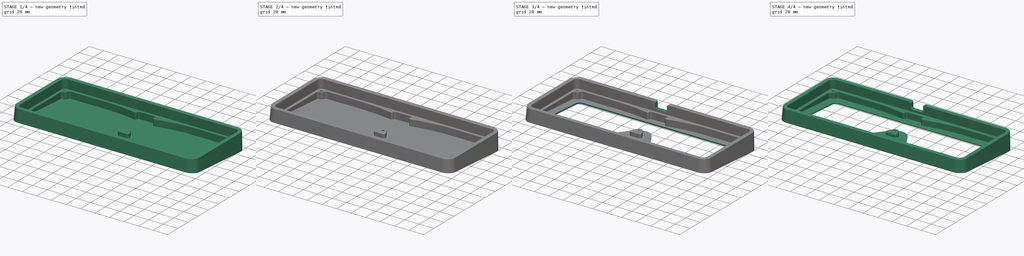
[diagram: build sequence overview — one tinted view per stage of 4, left to right]
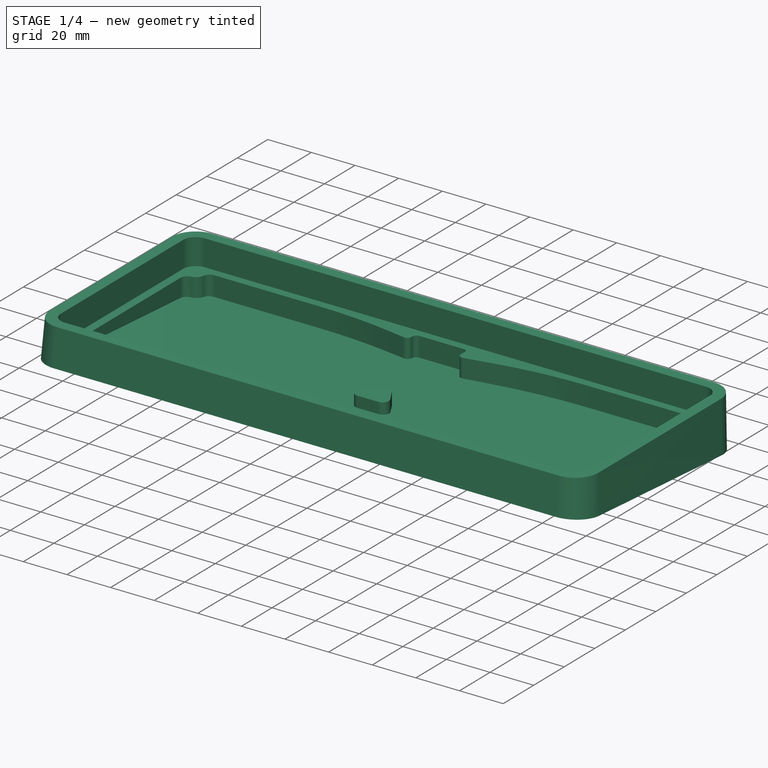
[diagram: stage 1 of 4 — iso view after this stage's code; geometry added in this stage tinted green]
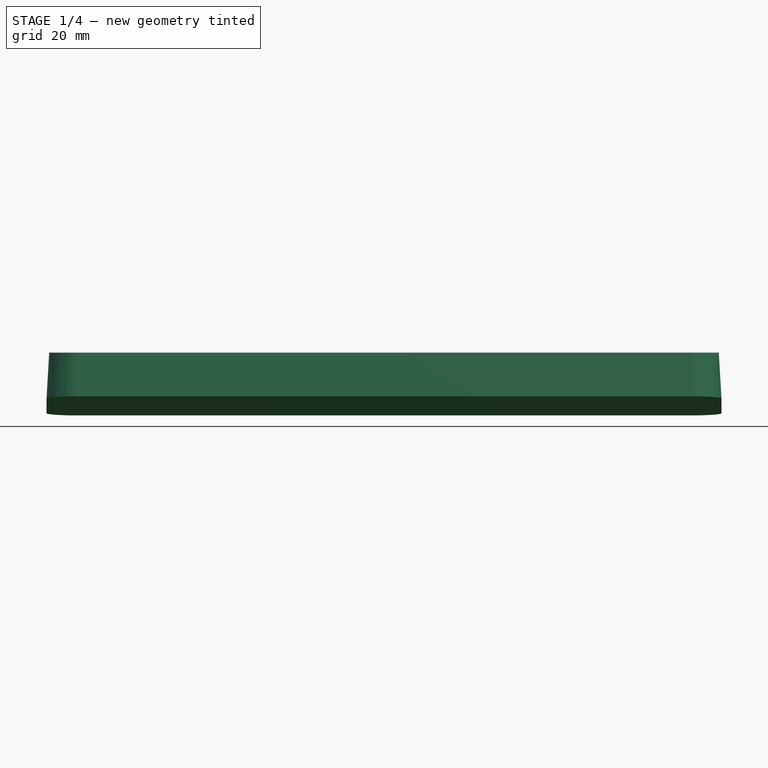
[diagram: stage 1 of 4 — front view after this stage's code; geometry added in this stage tinted green]
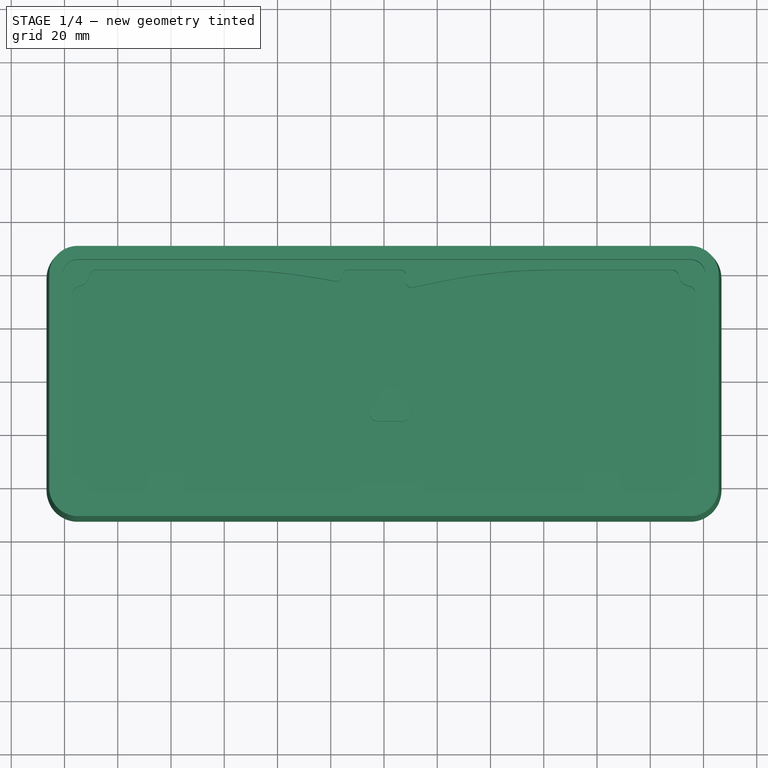
[diagram: stage 1 of 4 — top view after this stage's code; geometry added in this stage tinted green]
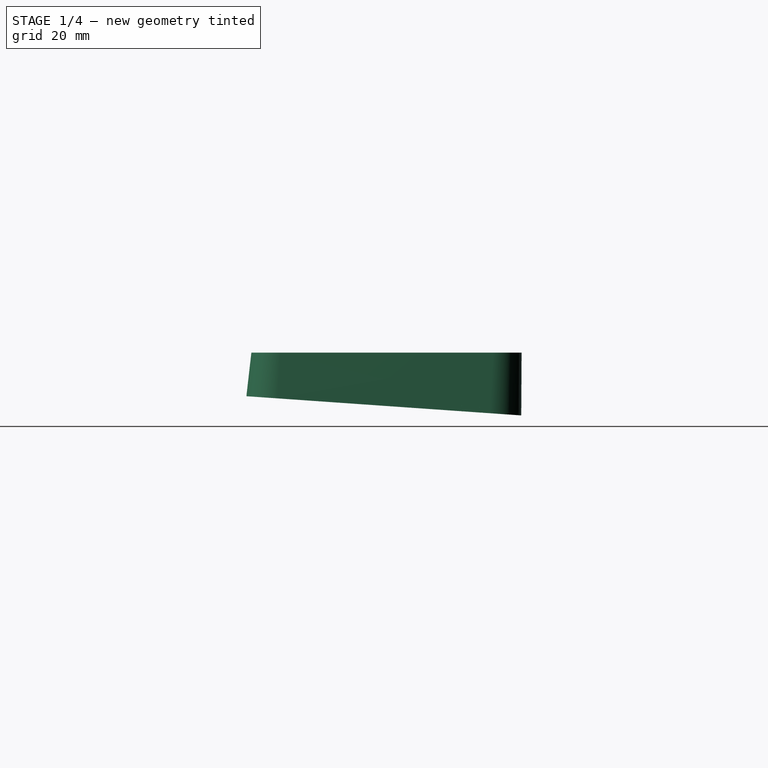
[diagram: stage 1 of 4 — right view after this stage's code; geometry added in this stage tinted green]
FCSTD DOCUMENT  (FreeCAD 0.20R)
Label: case-2
License: All rights reserved
LicenseURL: http://en.wikipedia.org/wiki/All_rights_reserved
objects: Sketcher::SketchObject×8, PartDesign::Pocket×5, PartDesign::Fillet×4, PartDesign::AdditiveLoft×1, PartDesign::Hole×1, PartDesign::Chamfer×1, PartDesign::Body×1
note: 33 computed .brp shape members not serialized (recipe doc carries the construction recipe); baked Part::Feature solids carry a one-line shape summary decoded from their .brp

FEATURE [Sketcher::SketchObject] Sketch
  AttachmentOffset = pos=(0,-1,0) rot=(1,0,0;-0.069813rad)
  FullyConstrained = false
  MapMode = 5
  Placement = pos=(0,-1,0) rot=(1,0,0;6.21337rad)
  Support = -> [XY_Plane]
  sketch-geometry (8):
    g0: LineSegment StartX=-126.75 StartY=40 StartZ=0 EndX=-126.75 EndY=-40 EndZ=0
    g1: LineSegment StartX=-115 StartY=-51.75 StartZ=0 EndX=115 EndY=-51.75 EndZ=0
    g2: ArcOfCircle CenterX=115 CenterY=-40 CenterZ=0 NormalX=0 NormalY=0 NormalZ=1 AngleXU=0 Radius=11.75 StartAngle=4.71239 EndAngle=6.28319
    g3: ArcOfCircle CenterX=-115 CenterY=-40 CenterZ=0 NormalX=0 NormalY=0 NormalZ=1 AngleXU=0 Radius=11.75 StartAngle=3.14159 EndAngle=4.71239
    g4: ArcOfCircle CenterX=115 CenterY=40 CenterZ=0 NormalX=0 NormalY=0 NormalZ=1 AngleXU=0 Radius=11.75 StartAngle=0 EndAngle=1.5708
    g5: LineSegment StartX=-115 StartY=51.75 StartZ=0 EndX=115 EndY=51.75 EndZ=0
    g6: ArcOfCircle CenterX=-115 CenterY=40 CenterZ=0 NormalX=0 NormalY=0 NormalZ=1 AngleXU=0 Radius=11.75 StartAngle=1.5708 EndAngle=3.14159
    g7: LineSegment StartX=126.75 StartY=40 StartZ=0 EndX=126.75 EndY=-40 EndZ=0
  constraints (8):
    c: Coincident(g0,g3)
    c: Coincident(g0,g6)
    c: Coincident(g1,g3)
    c: Coincident(g5,g6)
    c: Coincident(g1,g2)
    c: Coincident(g4,g5)
    c: Coincident(g2,g7)
    c: Coincident(g4,g7)
FEATURE [Sketcher::SketchObject] Sketch001
  AttachmentOffset = pos=(0,0,20) rot=(1,0,0;0rad)
  FullyConstrained = false
  MapMode = 5
  Placement = pos=(0,0,20) rot=(0,0,1;0rad)
  Support = -> [XY_Plane]
  sketch-geometry (8):
    g0: ArcOfCircle CenterX=-115 CenterY=-40 CenterZ=0 NormalX=0 NormalY=0 NormalZ=1 AngleXU=0 Radius=10.75 StartAngle=3.14159 EndAngle=4.71239
    g1: LineSegment StartX=-115 StartY=-50.75 StartZ=0 EndX=115 EndY=-50.75 EndZ=0
    g2: ArcOfCircle CenterX=115 CenterY=-40 CenterZ=0 NormalX=0 NormalY=0 NormalZ=1 AngleXU=0 Radius=10.75 StartAngle=4.71239 EndAngle=6.28319
    g3: ArcOfCircle CenterX=115 CenterY=40 CenterZ=0 NormalX=0 NormalY=0 NormalZ=1 AngleXU=0 Radius=10.75 StartAngle=0 EndAngle=1.5708
    g4: LineSegment StartX=-115 StartY=50.75 StartZ=0 EndX=115 EndY=50.75 EndZ=0
    g5: ArcOfCircle CenterX=-115 CenterY=40 CenterZ=0 NormalX=0 NormalY=0 NormalZ=1 AngleXU=0 Radius=10.75 StartAngle=1.5708 EndAngle=3.14159
    g6: LineSegment StartX=125.75 StartY=40 StartZ=0 EndX=125.75 EndY=-40 EndZ=0
    g7: LineSegment StartX=-125.75 StartY=40 StartZ=0 EndX=-125.75 EndY=-40 EndZ=0
  constraints (8):
    c: Coincident(g0,g7)
    c: Coincident(g5,g7)
    c: Coincident(g0,g1)
    c: Coincident(g4,g5)
    c: Coincident(g1,g2)
    c: Coincident(g3,g4)
    c: Coincident(g2,g6)
    c: Coincident(g3,g6)
FEATURE [PartDesign::AdditiveLoft] AdditiveLoft
  Closed = true
  Profile = -> Sketch
  Ruled = true
  Sections = -> [Sketch001]
FEATURE [Sketcher::SketchObject] Sketch002
  FullyConstrained = false
  MapMode = 5
  Placement = pos=(0,0,20) rot=(0,0,1;0rad)
  Support = -> [AdditiveLoft]
  sketch-geometry (8):
    g0: LineSegment StartX=-115 StartY=45.75 StartZ=0 EndX=115 EndY=45.75 EndZ=0
    g1: LineSegment StartX=-115 StartY=-45.75 StartZ=0 EndX=115 EndY=-45.75 EndZ=0
    g2: ArcOfCircle CenterX=115 CenterY=-40 CenterZ=0 NormalX=0 NormalY=0 NormalZ=1 AngleXU=0 Radius=5.75 StartAngle=4.71239 EndAngle=6.28319
    g3: LineSegment StartX=120.75 StartY=40 StartZ=0 EndX=120.75 EndY=-40 EndZ=0
    g4: ArcOfCircle CenterX=115 CenterY=40 CenterZ=0 NormalX=0 NormalY=0 NormalZ=1 AngleXU=0 Radius=5.75 StartAngle=0 EndAngle=1.5708
    g5: ArcOfCircle CenterX=-115 CenterY=-40 CenterZ=0 NormalX=0 NormalY=0 NormalZ=1 AngleXU=0 Radius=5.75 StartAngle=3.14159 EndAngle=4.71239
    g6: LineSegment StartX=-120.75 StartY=40 StartZ=0 EndX=-120.75 EndY=-40 EndZ=0
    g7: ArcOfCircle CenterX=-115 CenterY=40 CenterZ=0 NormalX=0 NormalY=0 NormalZ=1 AngleXU=0 Radius=5.75 StartAngle=1.5708 EndAngle=3.14159
  constraints (8):
    c: Coincident(g5,g6)
    c: Coincident(g6,g7)
    c: Coincident(g1,g5)
    c: Coincident(g0,g7)
    c: Coincident(g1,g2)
    c: Coincident(g0,g4)
    c: Coincident(g2,g3)
    c: Coincident(g3,g4)
FEATURE [PartDesign::Pocket] Pocket
  BaseFeature = -> AdditiveLoft
  Direction = (0,0,-1)
  Length = 12
  Length2 = 5
  Profile = -> Sketch002
  ReferenceAxis = -> Sketch002 [N_Axis]
  Type = 0
FEATURE [Sketcher::SketchObject] Sketch003
  FullyConstrained = false
  MapMode = 5
  Placement = pos=(0,0,8) rot=(0,0,1;0rad)
  Support = -> [Pocket]
  sketch-geometry (58):
    g0: ArcOfCircle CenterX=2.375 CenterY=-6.28567 CenterZ=0 NormalX=0 NormalY=0 NormalZ=1 AngleXU=0 Radius=4.1 StartAngle=0.532966 EndAngle=2.57593
    g1: ArcOfCircle CenterX=-107.971 CenterY=-39 CenterZ=0 NormalX=0 NormalY=0 NormalZ=1 AngleXU=0 Radius=3 StartAngle=3.28291 EndAngle=4.71239
    g2: ArcOfCircle CenterX=-114 CenterY=-32.9708 CenterZ=0 NormalX=0 NormalY=0 NormalZ=1 AngleXU=0 Radius=3 StartAngle=3.14159 EndAngle=4.57107
    g3: LineSegment StartX=-117 StartY=32.9708 StartZ=0 EndX=-117 EndY=-32.9708 EndZ=0
    g4: ArcOfCircle CenterX=-114 CenterY=32.9708 CenterZ=0 NormalX=0 NormalY=0 NormalZ=1 AngleXU=0 Radius=3 StartAngle=1.71211 EndAngle=3.14159
    g5: ArcOfCircle CenterX=-107.971 CenterY=39 CenterZ=0 NormalX=0 NormalY=0 NormalZ=1 AngleXU=0 Radius=3 StartAngle=1.5708 EndAngle=3.00028
    g6: ArcOfCircle CenterX=107.971 CenterY=39 CenterZ=0 NormalX=0 NormalY=0 NormalZ=1 AngleXU=0 Radius=3 StartAngle=0.141315 EndAngle=1.5708
    g7: ArcOfCircle CenterX=114 CenterY=32.9708 CenterZ=0 NormalX=0 NormalY=0 NormalZ=1 AngleXU=0 Radius=3 StartAngle=0 EndAngle=1.42948
    g8: ArcOfCircle CenterX=107.971 CenterY=-39 CenterZ=0 NormalX=0 NormalY=0 NormalZ=1 AngleXU=0 Radius=3 StartAngle=4.71239 EndAngle=6.14187
    g9: LineSegment StartX=117 StartY=32.9708 StartZ=0 EndX=117 EndY=-32.9708 EndZ=0
    g10: ArcOfCircle CenterX=114 CenterY=-32.9708 CenterZ=0 NormalX=0 NormalY=0 NormalZ=1 AngleXU=0 Radius=3 StartAngle=4.8537 EndAngle=6.28319
    g11: ArcOfCircle CenterX=115 CenterY=-40 CenterZ=0 NormalX=0 NormalY=0 NormalZ=1 AngleXU=0 Radius=4.1 StartAngle=1.71211 EndAngle=3.00028
    g12: ArcOfCircle CenterX=115 CenterY=40 CenterZ=0 NormalX=0 NormalY=0 NormalZ=1 AngleXU=0 Radius=4.1 StartAngle=3.28291 EndAngle=4.57107
    g13: ArcOfCircle CenterX=-115 CenterY=40 CenterZ=0 NormalX=0 NormalY=0 NormalZ=1 AngleXU=0 Radius=4.1 StartAngle=4.8537 EndAngle=6.14187
    g14: ArcOfCircle CenterX=-115 CenterY=-40 CenterZ=0 NormalX=0 NormalY=0 NormalZ=1 AngleXU=0 Radius=4.1 StartAngle=0.141315 EndAngle=1.42948
    g15: LineSegment StartX=5.90635 StartY=-4.2025 StartZ=0 EndX=9.51837 EndY=-10.3255 EndZ=0
    g16: ArcOfCircle CenterX=6.93445 CenterY=-11.8498 CenterZ=0 NormalX=0 NormalY=0 NormalZ=1 AngleXU=0 Radius=3 StartAngle=4.71239 EndAngle=6.81615
    g17: LineSegment StartX=-2.46045 StartY=-14.8498 StartZ=0 EndX=6.93445 EndY=-14.8498 EndZ=0
    g18: LineSegment StartX=-1.08635 StartY=-4.08816 StartZ=0 EndX=-4.99315 EndY=-10.2419 EndZ=0
    g19: ArcOfCircle CenterX=-2.46045 CenterY=-11.8498 CenterZ=0 NormalX=0 NormalY=0 NormalZ=1 AngleXU=0 Radius=3 StartAngle=2.57593 EndAngle=4.71239
    g20: LineSegment StartX=90.8588 StartY=-42 StartZ=0 EndX=107.971 EndY=-42 EndZ=0
    g21: ArcOfCircle CenterX=90.8588 CenterY=-40 CenterZ=0 NormalX=0 NormalY=0 NormalZ=1 AngleXU=0 Radius=2 StartAngle=3.14159 EndAngle=4.71239
    g22: LineSegment StartX=88.8588 StartY=-40 StartZ=0 EndX=88.8588 EndY=-36 EndZ=0
    g23: ArcOfCircle CenterX=86.8588 CenterY=-36 CenterZ=0 NormalX=0 NormalY=0 NormalZ=1 AngleXU=0 Radius=2 StartAngle=0 EndAngle=1.5708
    g24: LineSegment StartX=77.4585 StartY=-34 StartZ=0 EndX=86.8588 EndY=-34 EndZ=0
    g25: ArcOfCircle CenterX=77.4585 CenterY=-36 CenterZ=0 NormalX=0 NormalY=0 NormalZ=1 AngleXU=0 Radius=2 StartAngle=1.5708 EndAngle=3.14159
    g26: LineSegment StartX=75.4585 StartY=-40 StartZ=0 EndX=75.4585 EndY=-36 EndZ=0
    g27: ArcOfCircle CenterX=73.4585 CenterY=-40 CenterZ=0 NormalX=0 NormalY=0 NormalZ=1 AngleXU=0 Radius=2 StartAngle=4.71239 EndAngle=6.28319
    g28: ArcOfCircle CenterX=-73.453 CenterY=-40 CenterZ=0 NormalX=0 NormalY=0 NormalZ=1 AngleXU=0 Radius=2 StartAngle=3.14159 EndAngle=4.71239
    g29: LineSegment StartX=-75.453 StartY=-40 StartZ=0 EndX=-75.453 EndY=-36 EndZ=0
    g30: ArcOfCircle CenterX=-77.453 CenterY=-36 CenterZ=0 NormalX=0 NormalY=0 NormalZ=1 AngleXU=0 Radius=2 StartAngle=0 EndAngle=1.5708
    g31: LineSegment StartX=-86.8588 StartY=-34 StartZ=0 EndX=-77.453 EndY=-34 EndZ=0
    g32: ArcOfCircle CenterX=-86.8588 CenterY=-36 CenterZ=0 NormalX=0 NormalY=0 NormalZ=1 AngleXU=0 Radius=2 StartAngle=1.5708 EndAngle=3.14159
    g33: LineSegment StartX=-88.8588 StartY=-40 StartZ=0 EndX=-88.8588 EndY=-36 EndZ=0
    g34: LineSegment StartX=-107.971 StartY=-42 StartZ=0 EndX=-90.8588 EndY=-42 EndZ=0
    g35: ArcOfCircle CenterX=-90.8588 CenterY=-40 CenterZ=0 NormalX=0 NormalY=0 NormalZ=1 AngleXU=0 Radius=2 StartAngle=4.71239 EndAngle=6.28319
    g36: ArcOfCircle CenterX=10.2392 CenterY=37.3596 CenterZ=0 NormalX=0 NormalY=0 NormalZ=1 AngleXU=0 Radius=2 StartAngle=3.14159 EndAngle=4.91659
    g37: ArcOfCircle CenterX=-17.7608 CenterY=39.6802 CenterZ=0 NormalX=0 NormalY=0 NormalZ=1 AngleXU=0 Radius=2 StartAngle=4.53786 EndAngle=6.28319
    g38: LineSegment StartX=-15.7608 StartY=39.6802 StartZ=0 EndX=-15.7608 EndY=40 EndZ=0
    g39: ArcOfCircle CenterX=-13.7608 CenterY=40 CenterZ=0 NormalX=0 NormalY=0 NormalZ=1 AngleXU=0 Radius=2 StartAngle=1.5708 EndAngle=3.14159
    g40: LineSegment StartX=8.23921 StartY=37.3596 StartZ=0 EndX=8.23921 EndY=40 EndZ=0
    g41: LineSegment StartX=-13.7608 StartY=42 StartZ=0 EndX=6.23921 EndY=42 EndZ=0
    g42: ArcOfCircle CenterX=6.23921 CenterY=40 CenterZ=0 NormalX=0 NormalY=0 NormalZ=1 AngleXU=0 Radius=2 StartAngle=0 EndAngle=1.5708
    g43: LineSegment StartX=-25.2029 StartY=38.9616 StartZ=0 EndX=-18.1081 EndY=37.7105 EndZ=0
    g44: LineSegment StartX=-107.971 StartY=42 StartZ=0 EndX=-59.9325 EndY=42 EndZ=0
    g45: ArcOfCircle CenterX=-59.9325 CenterY=-158 CenterZ=0 NormalX=0 NormalY=0 NormalZ=1 AngleXU=0 Radius=200 StartAngle=1.39626 EndAngle=1.5708
    g46: LineSegment StartX=10.6448 StartY=35.4012 StartZ=0 EndX=22.4434 EndY=37.8446 EndZ=0
    g47: LineSegment StartX=63.0009 StartY=42 StartZ=0 EndX=107.971 EndY=42 EndZ=0
    g48: ArcOfCircle CenterX=63.0009 CenterY=-158 CenterZ=0 NormalX=0 NormalY=0 NormalZ=1 AngleXU=0 Radius=200 StartAngle=1.5708 EndAngle=1.775
    g49: LineSegment StartX=-73.453 StartY=-42 StartZ=0 EndX=-11.852 EndY=-42 EndZ=0
    g50: ArcOfCircle CenterX=-11.852 CenterY=-40 CenterZ=0 NormalX=0 NormalY=0 NormalZ=1 AngleXU=0 Radius=2 StartAngle=4.71239 EndAngle=6.10283
    g51: LineSegment StartX=-9.68066 StartY=-39.241 StartZ=0 EndX=-9.88445 EndY=-40.3588 EndZ=0
    g52: ArcOfCircle CenterX=-7.7131 CenterY=-39.5998 CenterZ=0 NormalX=0 NormalY=0 NormalZ=1 AngleXU=0 Radius=2 StartAngle=1.5708 EndAngle=2.96124
    g53: LineSegment StartX=-7.7131 StartY=-37.5998 StartZ=0 EndX=12.4631 EndY=-37.5998 EndZ=0
    g54: ArcOfCircle CenterX=12.4631 CenterY=-39.5998 CenterZ=0 NormalX=0 NormalY=0 NormalZ=1 AngleXU=0 Radius=2 StartAngle=0.180353 EndAngle=1.5708
    g55: LineSegment StartX=14.4307 StartY=-39.241 StartZ=0 EndX=14.6345 EndY=-40.3588 EndZ=0
    g56: LineSegment StartX=16.602 StartY=-42 StartZ=0 EndX=73.4585 EndY=-42 EndZ=0
    g57: ArcOfCircle CenterX=16.602 CenterY=-40 CenterZ=0 NormalX=0 NormalY=0 NormalZ=1 AngleXU=0 Radius=2 StartAngle=3.32195 EndAngle=4.71239
  constraints (58):
    c: Coincident(g2,g3)
    c: Coincident(g3,g4)
    c: Coincident(g2,g14)
    c: Coincident(g4,g13)
    c: Coincident(g1,g14)
    c: Coincident(g5,g13)
    c: Coincident(g1,g34)
    c: Coincident(g5,g44)
    c: Coincident(g34,g35)
    c: Coincident(g33,g35)
    c: Coincident(g32,g33)
    c: Coincident(g31,g32)
    c: Coincident(g30,g31)
    c: Coincident(g28,g29)
    c: Coincident(g29,g30)
    c: Coincident(g28,g49)
    c: Coincident(g44,g45)
    c: Coincident(g43,g45)
    c: Coincident(g37,g43)
    c: Coincident(g37,g38)
    c: Coincident(g38,g39)
    c: Coincident(g39,g41)
    c: Coincident(g49,g50)
    c: Coincident(g50,g51)
    c: Coincident(g51,g52)
    c: Coincident(g52,g53)
    c: Coincident(g18,g19)
    c: Coincident(g17,g19)
    c: Coincident(g0,g18)
    c: Coincident(g0,g15)
    c: Coincident(g41,g42)
    c: Coincident(g16,g17)
    c: Coincident(g36,g40)
    c: Coincident(g40,g42)
    c: Coincident(g15,g16)
    c: Coincident(g36,g46)
    c: Coincident(g53,g54)
    c: Coincident(g54,g55)
    c: Coincident(g55,g57)
    c: Coincident(g56,g57)
    c: Coincident(g46,g48)
    c: Coincident(g47,g48)
    c: Coincident(g27,g56)
    c: Coincident(g26,g27)
    c: Coincident(g25,g26)
    c: Coincident(g24,g25)
    c: Coincident(g23,g24)
    c: Coincident(g21,g22)
    c: Coincident(g22,g23)
    c: Coincident(g20,g21)
    c: Coincident(g8,g20)
    c: Coincident(g6,g47)
    c: Coincident(g8,g11)
    c: Coincident(g6,g12)
    c: Coincident(g10,g11)
    c: Coincident(g7,g12)
    c: Coincident(g9,g10)
    c: Coincident(g7,g9)
FEATURE [PartDesign::Pocket] Pocket001
  BaseFeature = -> Pocket
  Direction = (0,0,-1)
  Length = 0
  Length2 = 5
  Offset = -2
  Profile = -> Sketch003
  ReferenceAxis = -> Sketch003 [N_Axis]
  Type = 3
  UpToFace = -> Pocket [Face1]
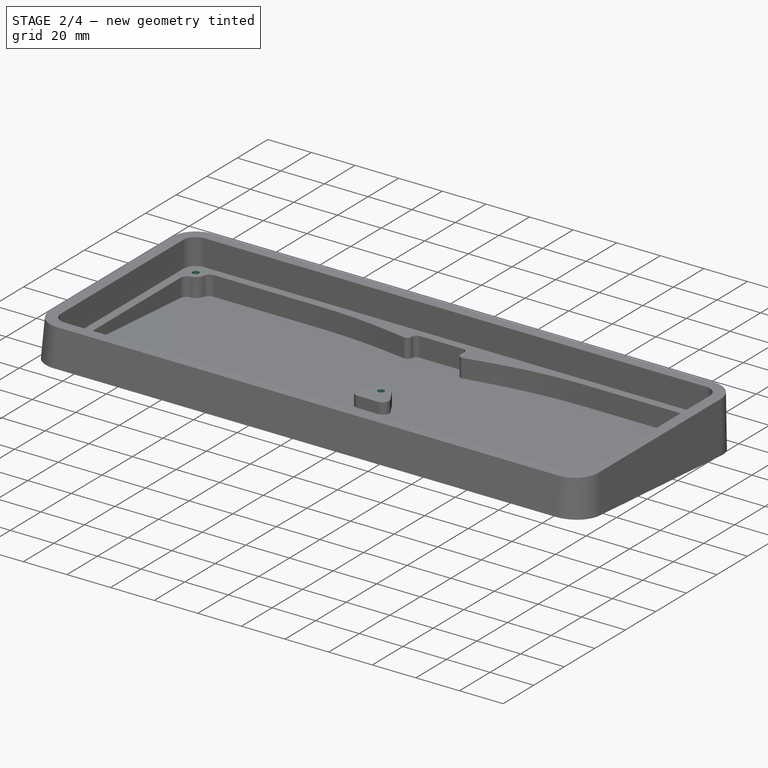
[diagram: stage 2 of 4 — iso view after this stage's code; geometry added in this stage tinted green]
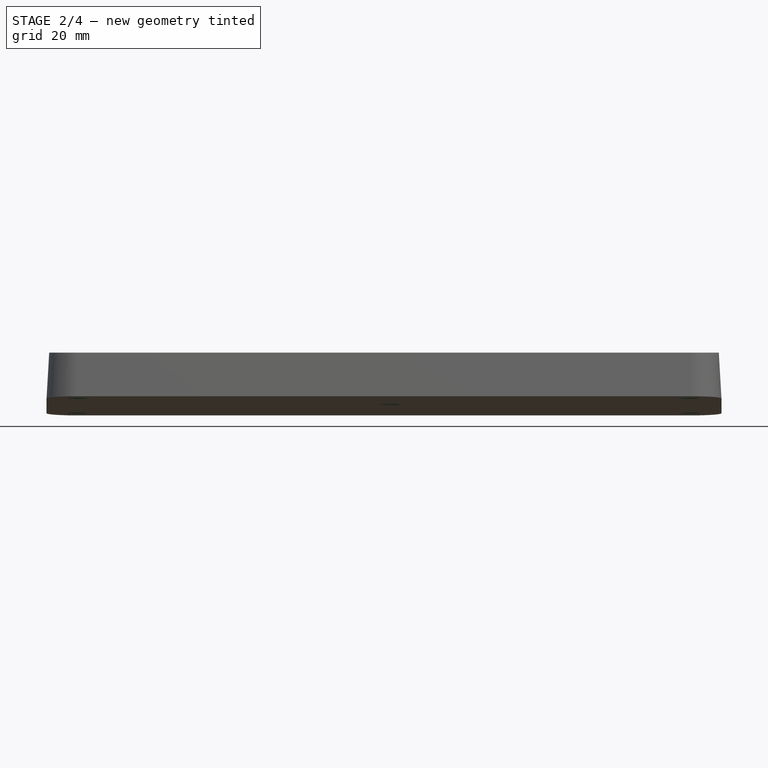
[diagram: stage 2 of 4 — front view after this stage's code; geometry added in this stage tinted green]
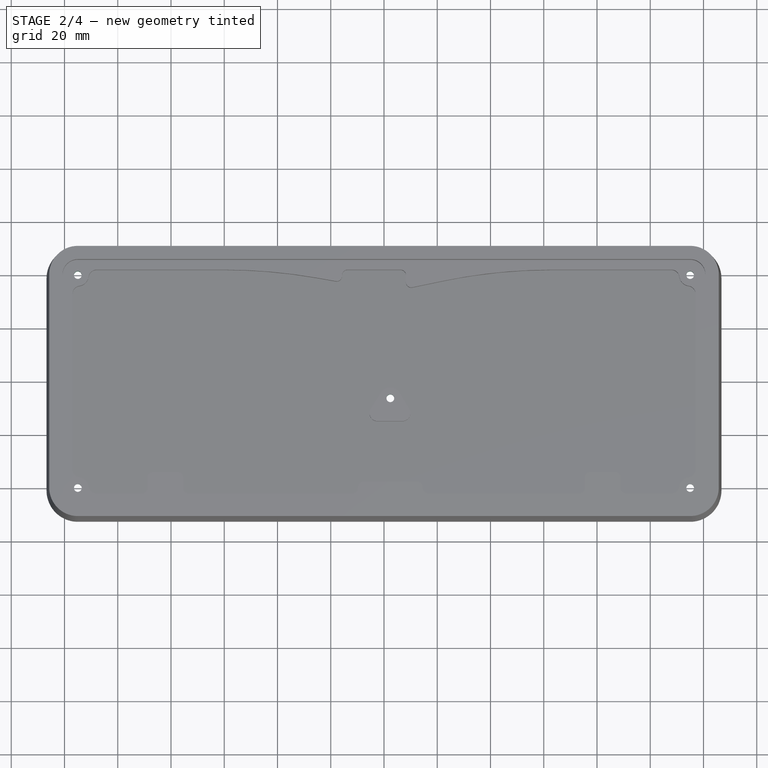
[diagram: stage 2 of 4 — top view after this stage's code; geometry added in this stage tinted green]
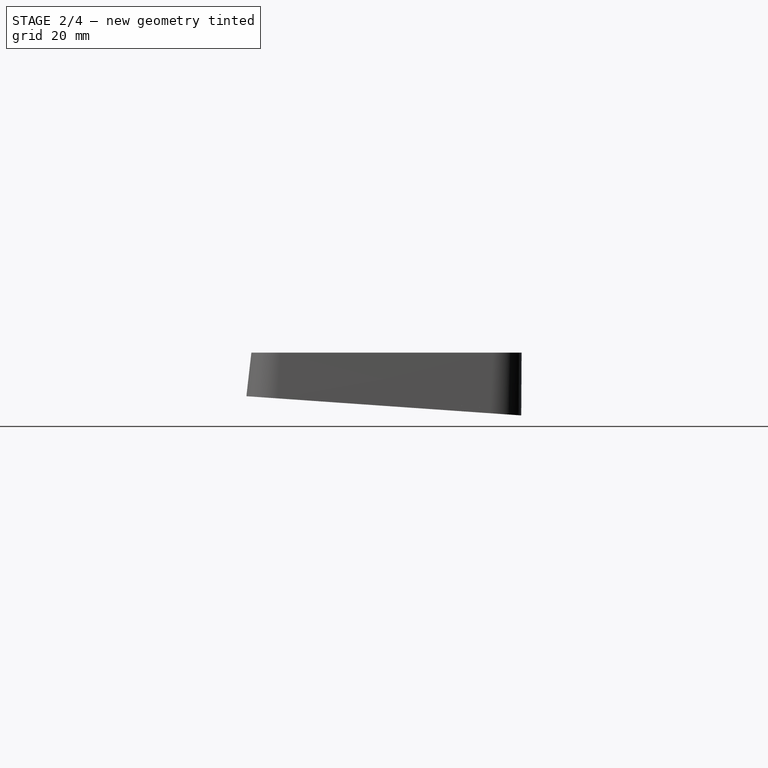
[diagram: stage 2 of 4 — right view after this stage's code; geometry added in this stage tinted green]
FEATURE [Sketcher::SketchObject] Sketch004
  FullyConstrained = false
  MapMode = 5
  Placement = pos=(0,0,8) rot=(0,0,1;0rad)
  Support = -> [Pocket]
  sketch-geometry (5):
    g0: Circle CenterX=2.375 CenterY=-6.28567 CenterZ=0 NormalX=0 NormalY=0 NormalZ=-1 AngleXU=0 Radius=1.1
    g1: Circle CenterX=-115 CenterY=-40 CenterZ=0 NormalX=0 NormalY=0 NormalZ=-1 AngleXU=0 Radius=1.1
    g2: Circle CenterX=115 CenterY=-40 CenterZ=0 NormalX=0 NormalY=0 NormalZ=-1 AngleXU=0 Radius=1.1
    g3: Circle CenterX=115 CenterY=40 CenterZ=0 NormalX=0 NormalY=0 NormalZ=-1 AngleXU=0 Radius=1.1
    g4: Circle CenterX=-115 CenterY=40 CenterZ=0 NormalX=0 NormalY=0 NormalZ=-1 AngleXU=0 Radius=1.1
FEATURE [PartDesign::Hole] Hole
  BaseFeature = -> Pocket001
  CustomThreadClearance = 0
  Depth = 555.062
  DepthType = 1
  Diameter = 2.9
  DrillForDepth = false
  DrillPoint = 1
  DrillPointAngle = 118
  HoleCutCountersinkAngle = 90
  HoleCutCustomValues = false
  HoleCutDepth = 0
  HoleCutDiameter = 6.1
  HoleCutType = 0
  ModelThread = false
  Profile = -> Sketch004
  Tapered = false
  TaperedAngle = 90
  ThreadClass = 0
  ThreadDepth = 555.062
  ThreadDepthType = 0
  ThreadDirection = 0
  ThreadFit = 0
  ThreadSize = 8
  ThreadType = 1
  Threaded = false
  UseCustomThreadClearance = false
FEATURE [PartDesign::Chamfer] Chamfer
  Angle = 45
  Base = -> Hole [Edge11,Edge9,Edge10,Edge13,Edge12]
  BaseFeature = -> Hole
  ChamferType = 0
  FlipDirection = false
  Size = 3
  Size2 = 1
  SupportTransform = false
  UseAllEdges = false
FEATURE [PartDesign::Fillet] Fillet
  Base = -> Chamfer [Face2,Face11,Face12,Face13,Face14]
  BaseFeature = -> Chamfer
  Radius = 1
  SupportTransform = false
  UseAllEdges = false
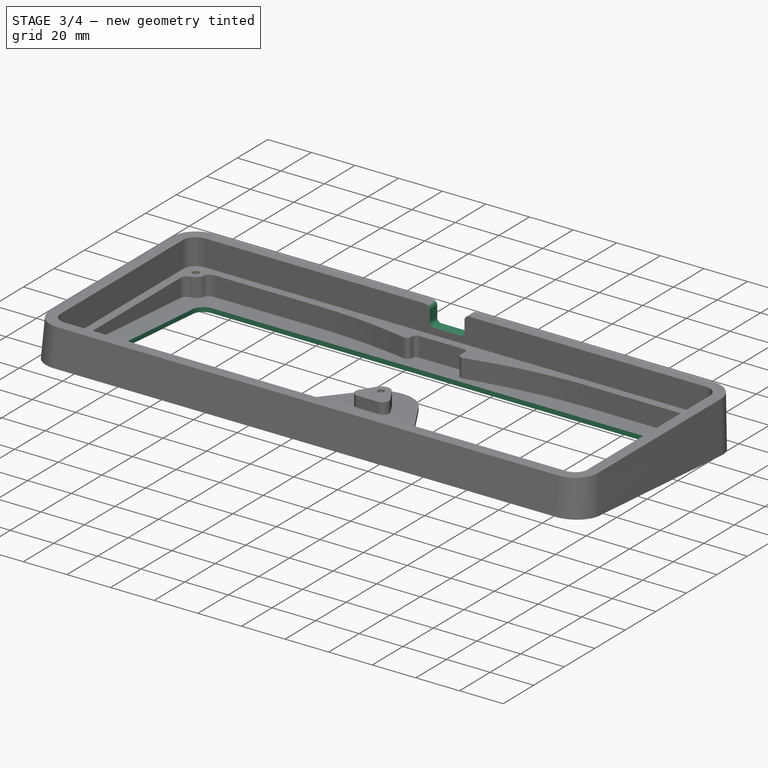
[diagram: stage 3 of 4 — iso view after this stage's code; geometry added in this stage tinted green]
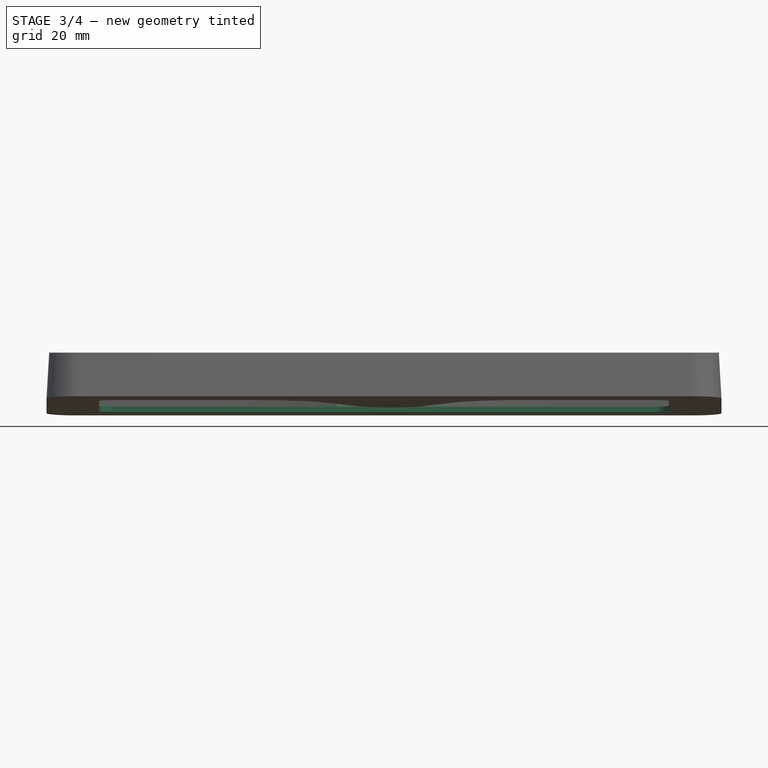
[diagram: stage 3 of 4 — front view after this stage's code; geometry added in this stage tinted green]
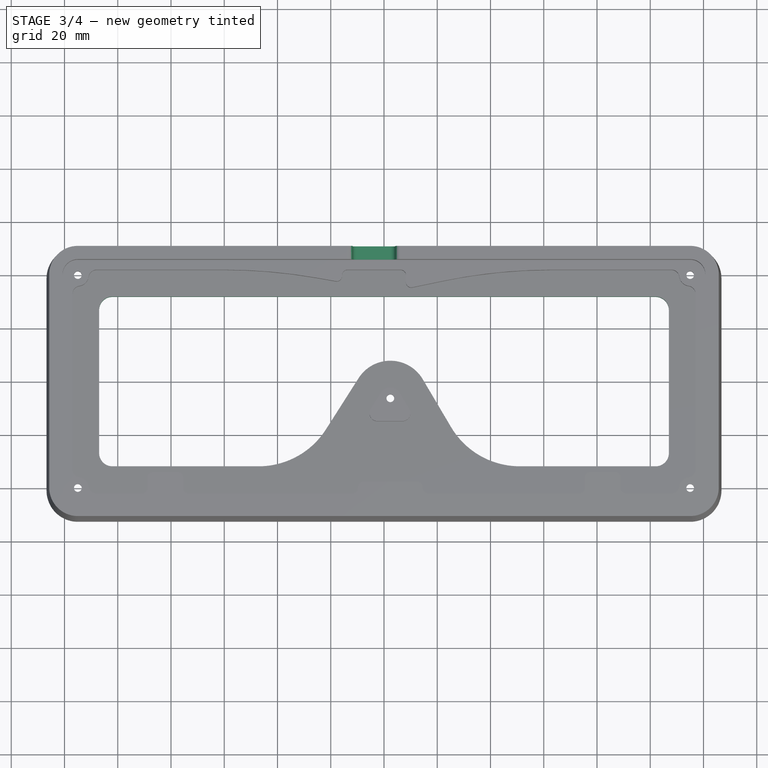
[diagram: stage 3 of 4 — top view after this stage's code; geometry added in this stage tinted green]
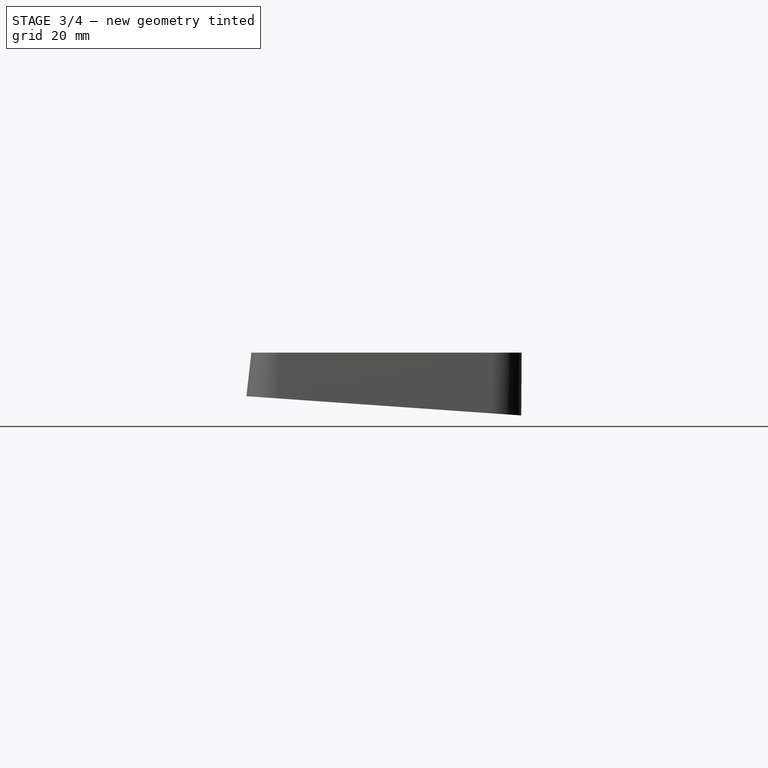
[diagram: stage 3 of 4 — right view after this stage's code; geometry added in this stage tinted green]
FEATURE [Sketcher::SketchObject] Sketch005
  FullyConstrained = false
  MapMode = 5
  Placement = pos=(0,0.134307,1.92068) rot=(-1,0,0;0.069813rad)
  Support = -> [Pocket001]
  sketch-geometry (14):
    g0: ArcOfCircle CenterX=2.375 CenterY=-6.28567 CenterZ=0 NormalX=0 NormalY=0 NormalZ=1 AngleXU=0 Radius=14.1 StartAngle=0.532966 EndAngle=2.57593
    g1: LineSegment StartX=-9.52867 StartY=1.27161 StartZ=0 EndX=-21.814 EndY=-18.0793 EndZ=0
    g2: ArcOfCircle CenterX=-47.141 CenterY=-2 CenterZ=0 NormalX=0 NormalY=0 NormalZ=1 AngleXU=0 Radius=30 StartAngle=4.71239 EndAngle=5.71752
    g3: LineSegment StartX=14.5194 StartY=0.878403 StartZ=0 EndX=25.2092 EndY=-17.2427 EndZ=0
    g4: ArcOfCircle CenterX=51.0483 CenterY=-2 CenterZ=0 NormalX=0 NormalY=0 NormalZ=1 AngleXU=0 Radius=30 StartAngle=3.67456 EndAngle=4.71239
    g5: ArcOfCircle CenterX=102 CenterY=27 CenterZ=0 NormalX=0 NormalY=0 NormalZ=1 AngleXU=0 Radius=5 StartAngle=0 EndAngle=1.5708
    g6: LineSegment StartX=107 StartY=27 StartZ=0 EndX=107 EndY=-27 EndZ=0
    g7: LineSegment StartX=51.0483 StartY=-32 StartZ=0 EndX=102 EndY=-32 EndZ=0
    g8: ArcOfCircle CenterX=102 CenterY=-27 CenterZ=0 NormalX=0 NormalY=0 NormalZ=1 AngleXU=0 Radius=5 StartAngle=4.71239 EndAngle=6.28319
    g9: LineSegment StartX=-102 StartY=32 StartZ=0 EndX=102 EndY=32 EndZ=0
    g10: ArcOfCircle CenterX=-102 CenterY=27 CenterZ=0 NormalX=0 NormalY=0 NormalZ=1 AngleXU=0 Radius=5 StartAngle=1.5708 EndAngle=3.14159
    g11: LineSegment StartX=-107 StartY=27 StartZ=0 EndX=-107 EndY=-27 EndZ=0
    g12: LineSegment StartX=-102 StartY=-32 StartZ=0 EndX=-47.141 EndY=-32 EndZ=0
    g13: ArcOfCircle CenterX=-102 CenterY=-27 CenterZ=0 NormalX=0 NormalY=0 NormalZ=1 AngleXU=0 Radius=5 StartAngle=3.14159 EndAngle=4.71239
  constraints (14):
    c: Coincident(g11,g13)
    c: Coincident(g10,g11)
    c: Coincident(g12,g13)
    c: Coincident(g9,g10)
    c: Coincident(g2,g12)
    c: Coincident(g1,g2)
    c: Coincident(g0,g1)
    c: Coincident(g0,g3)
    c: Coincident(g3,g4)
    c: Coincident(g4,g7)
    c: Coincident(g7,g8)
    c: Coincident(g5,g9)
    c: Coincident(g6,g8)
    c: Coincident(g5,g6)
FEATURE [PartDesign::Pocket] Pocket002
  BaseFeature = -> Fillet
  Direction = (0,-0.0697565,-0.997564)
  Length = 5
  Length2 = 5
  Profile = -> Sketch005
  ReferenceAxis = -> Sketch005 [N_Axis]
  Type = 1
FEATURE [Sketcher::SketchObject] Sketch006
  FullyConstrained = false
  MapMode = 5
  Placement = pos=(0,0,20) rot=(0,0,1;0rad)
  Support = -> [AdditiveLoft]
  sketch-geometry (4):
    g0: LineSegment StartX=4.23921 StartY=66 StartZ=0 EndX=-11.7608 EndY=66 EndZ=0
    g1: LineSegment StartX=-11.7608 StartY=38.5 StartZ=0 EndX=-11.7608 EndY=66 EndZ=0
    g2: LineSegment StartX=4.23921 StartY=38.5 StartZ=0 EndX=4.23921 EndY=66 EndZ=0
    g3: LineSegment StartX=4.23921 StartY=38.5 StartZ=0 EndX=-11.7608 EndY=38.5 EndZ=0
  constraints (4):
    c: Coincident(g1,g3)
    c: Coincident(g0,g1)
    c: Coincident(g2,g3)
    c: Coincident(g0,g2)
FEATURE [PartDesign::Pocket] Pocket003
  BaseFeature = -> Pocket002
  Direction = (0,0,-1)
  Length = 0
  Length2 = 5
  Offset = -3
  Profile = -> Sketch006
  ReferenceAxis = -> Sketch006 [N_Axis]
  Type = 3
  UpToFace = -> Pocket002 [Face112]
FEATURE [PartDesign::Fillet] Fillet001
  Base = -> Pocket003 [Edge86,Edge100,Edge97,Edge96]
  BaseFeature = -> Pocket003
  Radius = 2
  SupportTransform = false
  UseAllEdges = false
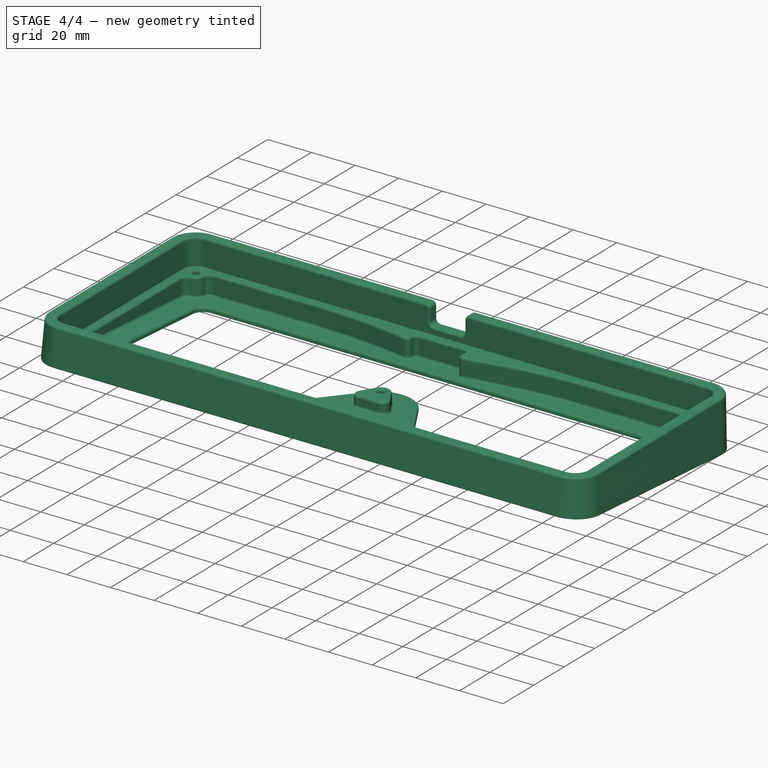
[diagram: stage 4 of 4 — iso view after this stage's code; geometry added in this stage tinted green]
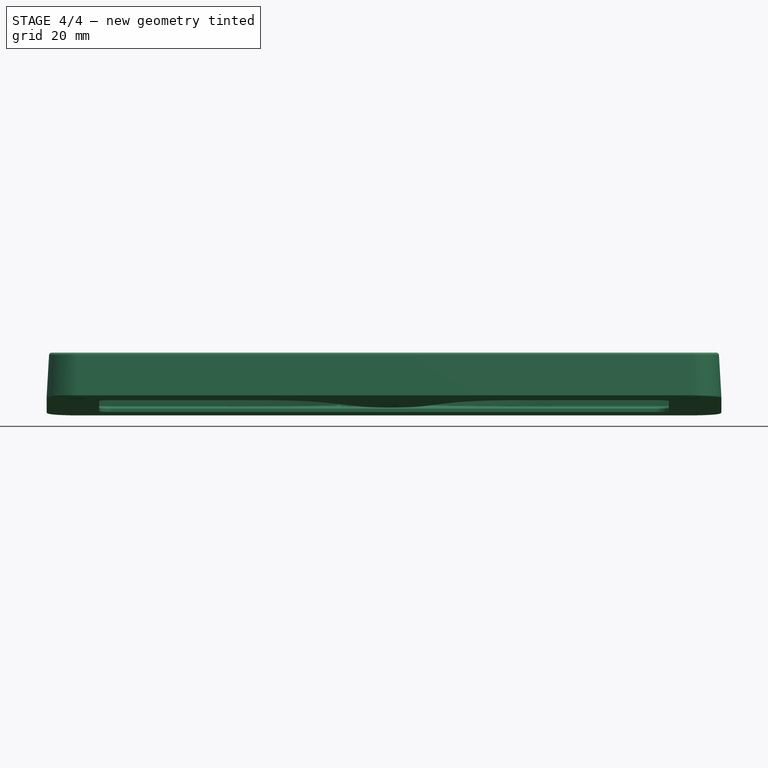
[diagram: stage 4 of 4 — front view after this stage's code; geometry added in this stage tinted green]
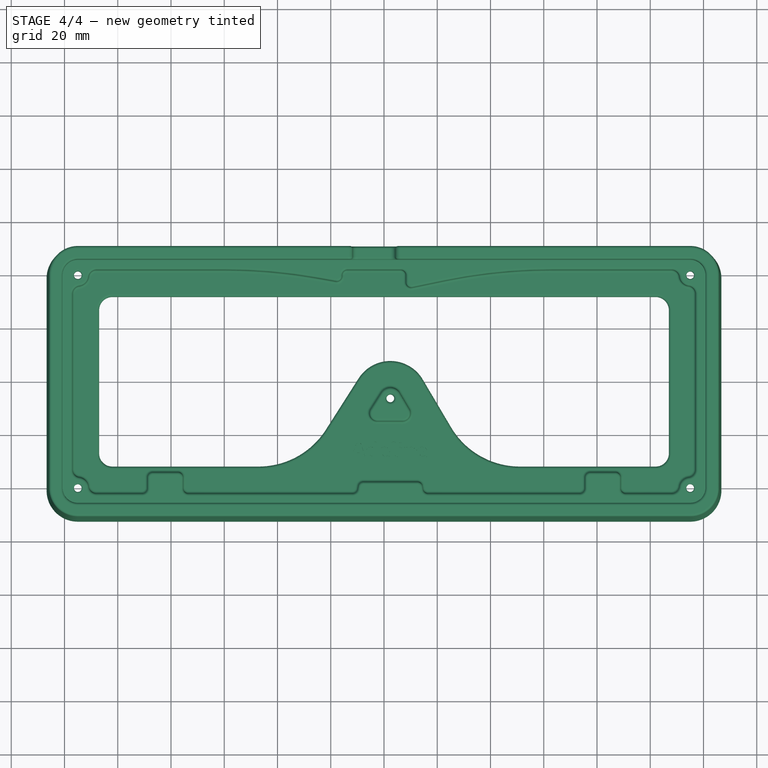
[diagram: stage 4 of 4 — top view after this stage's code; geometry added in this stage tinted green]
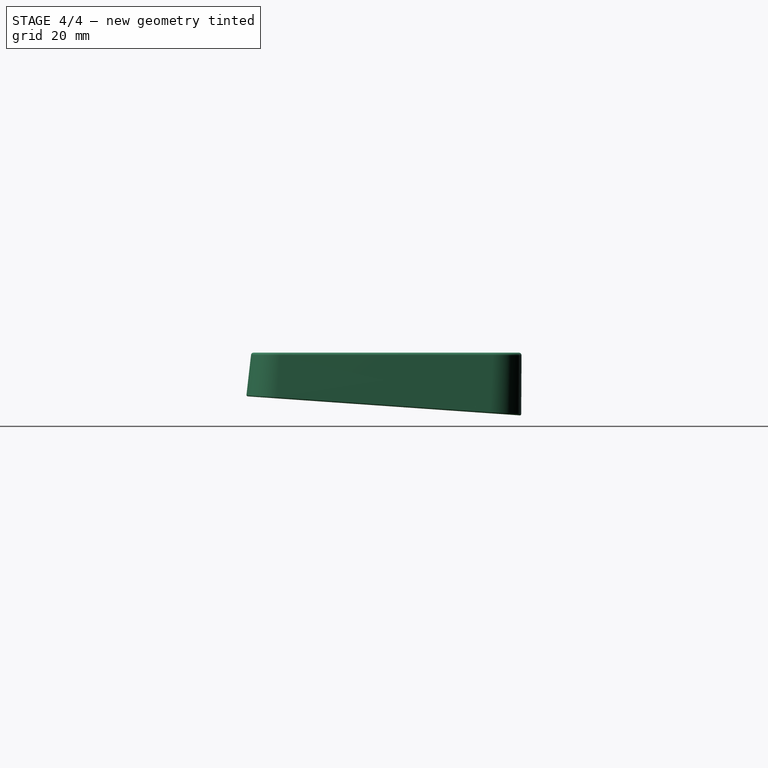
[diagram: stage 4 of 4 — right view after this stage's code; geometry added in this stage tinted green]
FEATURE [PartDesign::Fillet] Fillet002
  Base = -> Fillet001 [Face48,Face125,Edge30,Edge1,Edge140]
  BaseFeature = -> Fillet001
  Radius = 1
  SupportTransform = false
  UseAllEdges = false
FEATURE [PartDesign::Fillet] Fillet003
  Base = -> Fillet002 [Edge369,Edge370,Edge368,Edge367,Edge23]
  BaseFeature = -> Fillet002
  Radius = 0.5
  SupportTransform = false
  UseAllEdges = false
FEATURE [Sketcher::SketchObject] Sketch007
  AttachmentOffset = pos=(2,-26,0) rot=(0,0,1;0rad)
  FullyConstrained = false
  MapMode = 5
  Placement = pos=(2,-25.8024,3.73435) rot=(-1,0,0;0.069813rad)
  Support = -> [Pocket001]
  sketch-geometry (291):
    g0: BSplineCurve PolesCount=4 KnotsCount=2 Degree=3 IsPeriodic=0
    g1: BSplineCurve PolesCount=4 KnotsCount=2 Degree=3 IsPeriodic=0
    g2: BSplineCurve PolesCount=4 KnotsCount=2 Degree=3 IsPeriodic=0
    g3: BSplineCurve PolesCount=4 KnotsCount=2 Degree=3 IsPeriodic=0
    g4: BSplineCurve PolesCount=4 KnotsCount=2 Degree=3 IsPeriodic=0
    g5: BSplineCurve PolesCount=4 KnotsCount=2 Degree=3 IsPeriodic=0
    g6: LineSegment StartX=-14.1224 StartY=-2.67554 StartZ=0 EndX=-12.446 EndY=2.48065 EndZ=0
    g7: BSplineCurve PolesCount=4 KnotsCount=2 Degree=3 IsPeriodic=0
    g8: BSplineCurve PolesCount=4 KnotsCount=2 Degree=3 IsPeriodic=0
    g9: LineSegment StartX=-11.8787 StartY=2.78545 StartZ=0 EndX=-11.2014 EndY=2.78545 EndZ=0
    g10: BSplineCurve PolesCount=4 KnotsCount=2 Degree=3 IsPeriodic=0
    g11: BSplineCurve PolesCount=4 KnotsCount=2 Degree=3 IsPeriodic=0
    g12: BSplineCurve PolesCount=4 KnotsCount=2 Degree=3 IsPeriodic=0
    g13: BSplineCurve PolesCount=4 KnotsCount=2 Degree=3 IsPeriodic=0
    g14: LineSegment StartX=-10.6341 StartY=2.48065 StartZ=0 EndX=-8.95772 EndY=-2.67554 EndZ=0
    g15: BSplineCurve PolesCount=4 KnotsCount=2 Degree=3 IsPeriodic=0
    g16: BSplineCurve PolesCount=4 KnotsCount=2 Degree=3 IsPeriodic=0
    g17: LineSegment StartX=-9.34718 StartY=-3.17507 StartZ=0 EndX=-9.83825 EndY=-3.17507 EndZ=0
    g18: BSplineCurve PolesCount=4 KnotsCount=2 Degree=3 IsPeriodic=0
    g19: BSplineCurve PolesCount=4 KnotsCount=2 Degree=3 IsPeriodic=0
    g20: LineSegment StartX=-13.2418 StartY=-3.17507 StartZ=0 EndX=-13.6906 EndY=-3.17507 EndZ=0
    g21: BSplineCurve PolesCount=4 KnotsCount=2 Degree=3 IsPeriodic=0
    g22: BSplineCurve PolesCount=4 KnotsCount=2 Degree=3 IsPeriodic=0
    g23: BSplineCurve PolesCount=4 KnotsCount=2 Degree=3 IsPeriodic=0
    g24: BSplineCurve PolesCount=4 KnotsCount=2 Degree=3 IsPeriodic=0
    g25: BSplineCurve PolesCount=4 KnotsCount=2 Degree=3 IsPeriodic=0
    g26: BSplineCurve PolesCount=4 KnotsCount=2 Degree=3 IsPeriodic=0
    g27: BSplineCurve PolesCount=4 KnotsCount=2 Degree=3 IsPeriodic=0
    g28: BSplineCurve PolesCount=4 KnotsCount=2 Degree=3 IsPeriodic=0
    g29: BSplineCurve PolesCount=4 KnotsCount=2 Degree=3 IsPeriodic=0
    g30: BSplineCurve PolesCount=4 KnotsCount=2 Degree=3 IsPeriodic=0
    g31: LineSegment StartX=-5.99438 StartY=1.02439 StartZ=0 EndX=-5.99438 EndY=2.90398 EndZ=0
    g32: BSplineCurve PolesCount=4 KnotsCount=2 Degree=3 IsPeriodic=0
    g33: BSplineCurve PolesCount=4 KnotsCount=2 Degree=3 IsPeriodic=0
    g34: LineSegment StartX=-5.41018 StartY=3.22572 StartZ=0 EndX=-5.17312 EndY=3.22572 EndZ=0
    g35: BSplineCurve PolesCount=4 KnotsCount=2 Degree=3 IsPeriodic=0
    g36: BSplineCurve PolesCount=4 KnotsCount=2 Degree=3 IsPeriodic=0
    g37: BSplineCurve PolesCount=4 KnotsCount=2 Degree=3 IsPeriodic=0
    g38: BSplineCurve PolesCount=4 KnotsCount=2 Degree=3 IsPeriodic=0
    g39: BSplineCurve PolesCount=4 KnotsCount=2 Degree=3 IsPeriodic=0
    g40: BSplineCurve PolesCount=4 KnotsCount=2 Degree=3 IsPeriodic=0
    g41: BSplineCurve PolesCount=4 KnotsCount=2 Degree=3 IsPeriodic=0
    g42: BSplineCurve PolesCount=4 KnotsCount=2 Degree=3 IsPeriodic=0
    g43: BSplineCurve PolesCount=4 KnotsCount=2 Degree=3 IsPeriodic=0
    g44: BSplineCurve PolesCount=4 KnotsCount=2 Degree=3 IsPeriodic=0
    g45: BSplineCurve PolesCount=4 KnotsCount=2 Degree=3 IsPeriodic=0
    g46: BSplineCurve PolesCount=4 KnotsCount=2 Degree=3 IsPeriodic=0
    g47: BSplineCurve PolesCount=4 KnotsCount=2 Degree=3 IsPeriodic=0
    g48: LineSegment StartX=-4.58892 StartY=2.90398 StartZ=0 EndX=-4.58892 EndY=-1.68494 EndZ=0
    g49: BSplineCurve PolesCount=4 KnotsCount=2 Degree=3 IsPeriodic=0
    g50: BSplineCurve PolesCount=4 KnotsCount=2 Degree=3 IsPeriodic=0
    g51: BSplineCurve PolesCount=4 KnotsCount=2 Degree=3 IsPeriodic=0
    g52: BSplineCurve PolesCount=4 KnotsCount=2 Degree=3 IsPeriodic=0
    g53: BSplineCurve PolesCount=4 KnotsCount=2 Degree=3 IsPeriodic=0
    g54: BSplineCurve PolesCount=4 KnotsCount=2 Degree=3 IsPeriodic=0
    g55: BSplineCurve PolesCount=4 KnotsCount=2 Degree=3 IsPeriodic=0
    g56: BSplineCurve PolesCount=4 KnotsCount=2 Degree=3 IsPeriodic=0
    g57: LineSegment StartX=-5.99438 StartY=-1.74421 StartZ=0 EndX=-5.99438 EndY=0.0253225 EndZ=0
    g58: BSplineCurve PolesCount=4 KnotsCount=2 Degree=3 IsPeriodic=0
    g59: BSplineCurve PolesCount=4 KnotsCount=2 Degree=3 IsPeriodic=0
    g60: BSplineCurve PolesCount=4 KnotsCount=2 Degree=3 IsPeriodic=0
    g61: BSplineCurve PolesCount=4 KnotsCount=2 Degree=3 IsPeriodic=0
    g62: BSplineCurve PolesCount=4 KnotsCount=2 Degree=3 IsPeriodic=0
    g63: BSplineCurve PolesCount=4 KnotsCount=2 Degree=3 IsPeriodic=0
    g64: BSplineCurve PolesCount=4 KnotsCount=2 Degree=3 IsPeriodic=0
    g65: BSplineCurve PolesCount=4 KnotsCount=2 Degree=3 IsPeriodic=0
    g66: BSplineCurve PolesCount=4 KnotsCount=2 Degree=3 IsPeriodic=0
    g67: BSplineCurve PolesCount=4 KnotsCount=2 Degree=3 IsPeriodic=0
    g68: BSplineCurve PolesCount=4 KnotsCount=2 Degree=3 IsPeriodic=0
    g69: BSplineCurve PolesCount=4 KnotsCount=2 Degree=3 IsPeriodic=0
    g70: BSplineCurve PolesCount=4 KnotsCount=2 Degree=3 IsPeriodic=0
    g71: BSplineCurve PolesCount=4 KnotsCount=2 Degree=3 IsPeriodic=0
    g72: BSplineCurve PolesCount=4 KnotsCount=2 Degree=3 IsPeriodic=0
    g73: BSplineCurve PolesCount=4 KnotsCount=2 Degree=3 IsPeriodic=0
    g74: BSplineCurve PolesCount=4 KnotsCount=2 Degree=3 IsPeriodic=0
    g75: BSplineCurve PolesCount=4 KnotsCount=2 Degree=3 IsPeriodic=0
    g76: BSplineCurve PolesCount=4 KnotsCount=2 Degree=3 IsPeriodic=0
    g77: BSplineCurve PolesCount=4 KnotsCount=2 Degree=3 IsPeriodic=0
    g78: BSplineCurve PolesCount=4 KnotsCount=2 Degree=3 IsPeriodic=0
    g79: BSplineCurve PolesCount=4 KnotsCount=2 Degree=3 IsPeriodic=0
    g80: BSplineCurve PolesCount=4 KnotsCount=2 Degree=3 IsPeriodic=0
    g81: LineSegment StartX=-0.397922 StartY=-1.39707 StartZ=0 EndX=-2.45532 EndY=-1.39707 EndZ=0
    g82: BSplineCurve PolesCount=4 KnotsCount=2 Degree=3 IsPeriodic=0
    g83: BSplineCurve PolesCount=4 KnotsCount=2 Degree=3 IsPeriodic=0
    g84: BSplineCurve PolesCount=4 KnotsCount=2 Degree=3 IsPeriodic=0
    g85: BSplineCurve PolesCount=4 KnotsCount=2 Degree=3 IsPeriodic=0
    g86: BSplineCurve PolesCount=4 KnotsCount=2 Degree=3 IsPeriodic=0
    g87: BSplineCurve PolesCount=4 KnotsCount=2 Degree=3 IsPeriodic=0
    g88: BSplineCurve PolesCount=4 KnotsCount=2 Degree=3 IsPeriodic=0
    g89: BSplineCurve PolesCount=4 KnotsCount=2 Degree=3 IsPeriodic=0
    g90: LineSegment StartX=0.838205 StartY=-1.88814 StartZ=0 EndX=0.838205 EndY=2.90398 EndZ=0
    g91: BSplineCurve PolesCount=4 KnotsCount=2 Degree=3 IsPeriodic=0
    g92: BSplineCurve PolesCount=4 KnotsCount=2 Degree=3 IsPeriodic=0
    g93: LineSegment StartX=1.4224 StartY=3.22572 StartZ=0 EndX=1.65947 EndY=3.22572 EndZ=0
    g94: BSplineCurve PolesCount=4 KnotsCount=2 Degree=3 IsPeriodic=0
    g95: BSplineCurve PolesCount=4 KnotsCount=2 Degree=3 IsPeriodic=0
    g96: BSplineCurve PolesCount=4 KnotsCount=2 Degree=3 IsPeriodic=0
    g97: BSplineCurve PolesCount=4 KnotsCount=2 Degree=3 IsPeriodic=0
    g98: BSplineCurve PolesCount=4 KnotsCount=2 Degree=3 IsPeriodic=0
    g99: BSplineCurve PolesCount=4 KnotsCount=2 Degree=3 IsPeriodic=0
    g100: BSplineCurve PolesCount=4 KnotsCount=2 Degree=3 IsPeriodic=0
    g101: BSplineCurve PolesCount=4 KnotsCount=2 Degree=3 IsPeriodic=0
    g102: BSplineCurve PolesCount=4 KnotsCount=2 Degree=3 IsPeriodic=0
    g103: BSplineCurve PolesCount=4 KnotsCount=2 Degree=3 IsPeriodic=0
    g104: BSplineCurve PolesCount=4 KnotsCount=2 Degree=3 IsPeriodic=0
    g105: LineSegment StartX=2.24367 StartY=2.90398 StartZ=0 EndX=2.24367 EndY=-1.76114 EndZ=0
    g106: BSplineCurve PolesCount=4 KnotsCount=2 Degree=3 IsPeriodic=0
    g107: BSplineCurve PolesCount=4 KnotsCount=2 Degree=3 IsPeriodic=0
    g108: BSplineCurve PolesCount=4 KnotsCount=2 Degree=3 IsPeriodic=0
    g109: BSplineCurve PolesCount=4 KnotsCount=2 Degree=3 IsPeriodic=0
    g110: LineSegment StartX=3.33587 StartY=-2.90414 StartZ=0 EndX=3.33587 EndY=1.01592 EndZ=0
    g111: BSplineCurve PolesCount=4 KnotsCount=2 Degree=3 IsPeriodic=0
    g112: BSplineCurve PolesCount=4 KnotsCount=2 Degree=3 IsPeriodic=0
    g113: LineSegment StartX=3.92007 StartY=1.28685 StartZ=0 EndX=4.15714 EndY=1.28685 EndZ=0
    g114: BSplineCurve PolesCount=4 KnotsCount=2 Degree=3 IsPeriodic=0
    g115: BSplineCurve PolesCount=4 KnotsCount=2 Degree=3 IsPeriodic=0
    g116: LineSegment StartX=4.74134 StartY=1.01592 StartZ=0 EndX=4.74134 EndY=-2.90414 EndZ=0
    g117: BSplineCurve PolesCount=4 KnotsCount=2 Degree=3 IsPeriodic=0
    g118: BSplineCurve PolesCount=4 KnotsCount=2 Degree=3 IsPeriodic=0
    g119: LineSegment StartX=4.15714 StartY=-3.17507 StartZ=0 EndX=3.92007 EndY=-3.17507 EndZ=0
    g120: BSplineCurve PolesCount=4 KnotsCount=2 Degree=3 IsPeriodic=0
    g121: BSplineCurve PolesCount=4 KnotsCount=2 Degree=3 IsPeriodic=0
    g122: BSplineCurve PolesCount=4 KnotsCount=2 Degree=3 IsPeriodic=0
    g123: BSplineCurve PolesCount=4 KnotsCount=2 Degree=3 IsPeriodic=0
    g124: LineSegment StartX=3.31894 StartY=2.01499 StartZ=0 EndX=3.31894 EndY=2.59072 EndZ=0
    g125: BSplineCurve PolesCount=4 KnotsCount=2 Degree=3 IsPeriodic=0
    g126: BSplineCurve PolesCount=4 KnotsCount=2 Degree=3 IsPeriodic=0
    g127: LineSegment StartX=4.75827 StartY=2.59072 StartZ=0 EndX=4.75827 EndY=2.01499 EndZ=0
    g128: BSplineCurve PolesCount=4 KnotsCount=2 Degree=3 IsPeriodic=0
    g129: BSplineCurve PolesCount=4 KnotsCount=2 Degree=3 IsPeriodic=0
    g130: BSplineCurve PolesCount=4 KnotsCount=2 Degree=3 IsPeriodic=0
    g131: BSplineCurve PolesCount=4 KnotsCount=2 Degree=3 IsPeriodic=0
    g132: BSplineCurve PolesCount=4 KnotsCount=2 Degree=3 IsPeriodic=0
    g133: BSplineCurve PolesCount=4 KnotsCount=2 Degree=3 IsPeriodic=0
    g134: BSplineCurve PolesCount=4 KnotsCount=2 Degree=3 IsPeriodic=0
    g135: BSplineCurve PolesCount=4 KnotsCount=2 Degree=3 IsPeriodic=0
    g136: BSplineCurve PolesCount=4 KnotsCount=2 Degree=3 IsPeriodic=0
    g137: BSplineCurve PolesCount=4 KnotsCount=2 Degree=3 IsPeriodic=0
    g138: BSplineCurve PolesCount=4 KnotsCount=2 Degree=3 IsPeriodic=0
    g139: BSplineCurve PolesCount=4 KnotsCount=2 Degree=3 IsPeriodic=0
    g140: BSplineCurve PolesCount=4 KnotsCount=2 Degree=3 IsPeriodic=0
    g141: BSplineCurve PolesCount=4 KnotsCount=2 Degree=3 IsPeriodic=0
    g142: BSplineCurve PolesCount=4 KnotsCount=2 Degree=3 IsPeriodic=0
    g143: BSplineCurve PolesCount=4 KnotsCount=2 Degree=3 IsPeriodic=0
    g144: BSplineCurve PolesCount=4 KnotsCount=2 Degree=3 IsPeriodic=0
    g145: BSplineCurve PolesCount=4 KnotsCount=2 Degree=3 IsPeriodic=0
    g146: LineSegment StartX=5.57953 StartY=-2.85334 StartZ=0 EndX=5.57953 EndY=-0.203277 EndZ=0
    g147: BSplineCurve PolesCount=4 KnotsCount=2 Degree=3 IsPeriodic=0
    g148: BSplineCurve PolesCount=4 KnotsCount=2 Degree=3 IsPeriodic=0
    g149: LineSegment StartX=9.49112 StartY=0.0676925 StartZ=0 EndX=9.49112 EndY=-2.8533 EndZ=0
    g150: BSplineCurve PolesCount=4 KnotsCount=2 Degree=3 IsPeriodic=0
    g151: BSplineCurve PolesCount=4 KnotsCount=2 Degree=3 IsPeriodic=0
    g152: LineSegment StartX=8.90692 StartY=-3.17504 StartZ=0 EndX=8.66985 EndY=-3.17504 EndZ=0
    g153: BSplineCurve PolesCount=4 KnotsCount=2 Degree=3 IsPeriodic=0
    g154: BSplineCurve PolesCount=4 KnotsCount=2 Degree=3 IsPeriodic=0
    g155: BSplineCurve PolesCount=4 KnotsCount=2 Degree=3 IsPeriodic=0
    g156: BSplineCurve PolesCount=4 KnotsCount=2 Degree=3 IsPeriodic=0
    g157: BSplineCurve PolesCount=4 KnotsCount=2 Degree=3 IsPeriodic=0
    g158: LineSegment StartX=8.08566 StartY=-2.8533 StartZ=0 EndX=8.08566 EndY=-0.245572 EndZ=0
    g159: BSplineCurve PolesCount=4 KnotsCount=2 Degree=3 IsPeriodic=0
    g160: BSplineCurve PolesCount=4 KnotsCount=2 Degree=3 IsPeriodic=0
    g161: LineSegment StartX=6.98499 StartY=-0.177842 StartZ=0 EndX=6.98499 EndY=-2.8533 EndZ=0
    g162: BSplineCurve PolesCount=4 KnotsCount=2 Degree=3 IsPeriodic=0
    g163: BSplineCurve PolesCount=4 KnotsCount=2 Degree=3 IsPeriodic=0
    g164: BSplineCurve PolesCount=4 KnotsCount=2 Degree=3 IsPeriodic=0
    g165: BSplineCurve PolesCount=4 KnotsCount=2 Degree=3 IsPeriodic=0
    g166: BSplineCurve PolesCount=4 KnotsCount=2 Degree=3 IsPeriodic=0
    g167: BSplineCurve PolesCount=4 KnotsCount=2 Degree=3 IsPeriodic=0
    g168: BSplineCurve PolesCount=4 KnotsCount=2 Degree=3 IsPeriodic=0
    g169: BSplineCurve PolesCount=4 KnotsCount=2 Degree=3 IsPeriodic=0
    g170: BSplineCurve PolesCount=4 KnotsCount=2 Degree=3 IsPeriodic=0
    g171: BSplineCurve PolesCount=4 KnotsCount=2 Degree=3 IsPeriodic=0
    g172: BSplineCurve PolesCount=4 KnotsCount=2 Degree=3 IsPeriodic=0
    g173: LineSegment StartX=6.40079 StartY=-3.17504 StartZ=0 EndX=6.16373 EndY=-3.17507 EndZ=0
    g174: BSplineCurve PolesCount=4 KnotsCount=2 Degree=3 IsPeriodic=0
    g175: BSplineCurve PolesCount=4 KnotsCount=2 Degree=3 IsPeriodic=0
    g176: BSplineCurve PolesCount=4 KnotsCount=2 Degree=3 IsPeriodic=0
    g177: BSplineCurve PolesCount=4 KnotsCount=2 Degree=3 IsPeriodic=0
    g178: BSplineCurve PolesCount=4 KnotsCount=2 Degree=3 IsPeriodic=0
    g179: BSplineCurve PolesCount=4 KnotsCount=2 Degree=3 IsPeriodic=0
    g180: BSplineCurve PolesCount=4 KnotsCount=2 Degree=3 IsPeriodic=0
    g181: BSplineCurve PolesCount=4 KnotsCount=2 Degree=3 IsPeriodic=0
    g182: BSplineCurve PolesCount=4 KnotsCount=2 Degree=3 IsPeriodic=0
    g183: BSplineCurve PolesCount=4 KnotsCount=2 Degree=3 IsPeriodic=0
    g184: BSplineCurve PolesCount=4 KnotsCount=2 Degree=3 IsPeriodic=0
    g185: BSplineCurve PolesCount=4 KnotsCount=2 Degree=3 IsPeriodic=0
    g186: LineSegment StartX=13.6398 StartY=-1.39707 StartZ=0 EndX=11.5824 EndY=-1.39707 EndZ=0
    g187: BSplineCurve PolesCount=4 KnotsCount=2 Degree=3 IsPeriodic=0
    g188: BSplineCurve PolesCount=4 KnotsCount=2 Degree=3 IsPeriodic=0
    g189: BSplineCurve PolesCount=4 KnotsCount=2 Degree=3 IsPeriodic=0
    g190: LineSegment StartX=-12.5112 StartY=-2.10457 StartZ=0 EndX=-12.7423 EndY=-2.9126 EndZ=0
    g191: ArcOfCircle CenterX=-12.4151 CenterY=-2.13207 CenterZ=0 NormalX=0 NormalY=0 NormalZ=1 AngleXU=0 Radius=0.1 StartAngle=1.5708 EndAngle=2.86302
    g192: ArcOfCircle CenterX=-12.0066 CenterY=-0.763672 CenterZ=0 NormalX=0 NormalY=0 NormalZ=1 AngleXU=0 Radius=0.1 StartAngle=2.8558 EndAngle=4.71239
    g193: LineSegment StartX=-12.0066 StartY=-0.863672 StartZ=0 EndX=-11.1003 EndY=-0.863672 EndZ=0
    g194: ArcOfCircle CenterX=-11.1003 CenterY=-0.763672 CenterZ=0 NormalX=0 NormalY=0 NormalZ=1 AngleXU=0 Radius=0.1 StartAngle=4.71239 EndAngle=6.56242
    g195: LineSegment StartX=-12.4151 StartY=-2.03207 StartZ=0 EndX=-10.7079 EndY=-2.03207 EndZ=0
    g196: LineSegment StartX=-10.6118 StartY=-2.10451 StartZ=0 EndX=-10.3801 EndY=-2.9126 EndZ=0
    g197: ArcOfCircle CenterX=-10.7079 CenterY=-2.13207 CenterZ=0 NormalX=0 NormalY=0 NormalZ=1 AngleXU=0 Radius=0.1 StartAngle=0.279238 EndAngle=1.5708
    g198: LineSegment StartX=-12.1026 StartY=-0.73548 StartZ=0 EndX=-11.6439 EndY=0.825633 EndZ=0
    g199: LineSegment StartX=-11.4518 StartY=0.825003 StartZ=0 EndX=-11.0042 EndY=-0.73611 EndZ=0
    g200: ArcOfCircle CenterX=-11.5479 CenterY=0.797441 CenterZ=0 NormalX=0 NormalY=0 NormalZ=1 AngleXU=0 Radius=0.1 StartAngle=0.279238 EndAngle=2.8558
    g201: LineSegment StartX=12.8361 StartY=-0.337878 StartZ=0 EndX=12.8338 EndY=-0.314399 EndZ=0
    g202: LineSegment StartX=12.8338 StartY=-0.314399 StartZ=0 EndX=12.8311 EndY=-0.29143 EndZ=0
    g203: LineSegment StartX=12.8311 StartY=-0.29143 StartZ=0 EndX=12.8281 EndY=-0.268973 EndZ=0
    g204: LineSegment StartX=12.8281 StartY=-0.268973 StartZ=0 EndX=12.8247 EndY=-0.247027 EndZ=0
    g205: LineSegment StartX=12.8247 StartY=-0.247027 StartZ=0 EndX=12.8211 EndY=-0.225591 EndZ=0
    g206: LineSegment StartX=12.8211 StartY=-0.225591 StartZ=0 EndX=12.8171 EndY=-0.204667 EndZ=0
    g207: LineSegment StartX=12.8171 StartY=-0.204667 StartZ=0 EndX=12.8128 EndY=-0.184253 EndZ=0
    g208: LineSegment StartX=12.8128 StartY=-0.184253 StartZ=0 EndX=12.8082 EndY=-0.164351 EndZ=0
    g209: LineSegment StartX=12.8082 StartY=-0.164351 StartZ=0 EndX=12.8033 EndY=-0.144959 EndZ=0
    g210: LineSegment StartX=12.8033 StartY=-0.144959 StartZ=0 EndX=12.7981 EndY=-0.126079 EndZ=0
    g211: LineSegment StartX=12.7981 StartY=-0.126079 StartZ=0 EndX=12.7925 EndY=-0.10771 EndZ=0
    g212: LineSegment StartX=12.7925 StartY=-0.10771 StartZ=0 EndX=12.7867 EndY=-0.0898511 EndZ=0
    g213: LineSegment StartX=12.7867 StartY=-0.0898511 StartZ=0 EndX=12.7805 EndY=-0.0725036 EndZ=0
    g214: LineSegment StartX=12.7805 StartY=-0.0725036 StartZ=0 EndX=12.774 EndY=-0.0556672 EndZ=0
    g215: LineSegment StartX=12.774 StartY=-0.0556672 StartZ=0 EndX=12.7672 EndY=-0.0393417 EndZ=0
    g216: LineSegment StartX=12.7672 StartY=-0.0393417 StartZ=0 EndX=12.76 EndY=-0.0235273 EndZ=0
    g217: LineSegment StartX=12.76 StartY=-0.0235273 StartZ=0 EndX=12.7526 EndY=-0.0082238 EndZ=0
    g218: LineSegment StartX=12.7526 StartY=-0.0082238 StartZ=0 EndX=12.7448 EndY=0.00656866 EndZ=0
    g219: LineSegment StartX=12.7448 StartY=0.00656866 StartZ=0 EndX=12.7367 EndY=0.0208501 EndZ=0
    g220: LineSegment StartX=12.7367 StartY=0.0208501 StartZ=0 EndX=12.7283 EndY=0.0346206 EndZ=0
    g221: LineSegment StartX=12.7283 StartY=0.0346206 StartZ=0 EndX=12.7196 EndY=0.0478801 EndZ=0
    g222: LineSegment StartX=12.7196 StartY=0.0478801 StartZ=0 EndX=12.7105 EndY=0.0606285 EndZ=0
    g223: LineSegment StartX=12.7105 StartY=0.0606285 StartZ=0 EndX=12.7012 EndY=0.072866 EndZ=0
    g224: LineSegment StartX=12.7012 StartY=0.072866 StartZ=0 EndX=12.6915 EndY=0.0845925 EndZ=0
    g225: ArcOfCircle CenterX=12.7425 CenterY=-0.416542 CenterZ=0 NormalX=0 NormalY=0 NormalZ=1 AngleXU=0 Radius=0.1 StartAngle=4.71239 EndAngle=6.36891
    g226: LineSegment StartX=12.8361 StartY=-0.337878 StartZ=0 EndX=12.8422 EndY=-0.407981 EndZ=0
    g227: LineSegment StartX=11.6755 StartY=-0.0170075 StartZ=0 EndX=11.6696 EndY=-0.0275712 EndZ=0
    g228: LineSegment StartX=11.6696 StartY=-0.0275712 StartZ=0 EndX=11.6638 EndY=-0.0385049 EndZ=0
    g229: LineSegment StartX=11.6638 StartY=-0.0385049 StartZ=0 EndX=11.6583 EndY=-0.0498087 EndZ=0
    g230: LineSegment StartX=11.6583 StartY=-0.0498087 StartZ=0 EndX=11.6529 EndY=-0.0614825 EndZ=0
    g231: LineSegment StartX=11.6529 StartY=-0.0614825 StartZ=0 EndX=11.6477 EndY=-0.0735263 EndZ=0
    g232: LineSegment StartX=11.6477 StartY=-0.0735263 StartZ=0 EndX=11.6426 EndY=-0.0859401 EndZ=0
    g233: LineSegment StartX=11.6426 StartY=-0.0859401 StartZ=0 EndX=11.6378 EndY=-0.0987239 EndZ=0
    g234: LineSegment StartX=11.6378 StartY=-0.0987239 StartZ=0 EndX=11.6331 EndY=-0.111878 EndZ=0
    g235: LineSegment StartX=11.6331 StartY=-0.111878 StartZ=0 EndX=11.6286 EndY=-0.125402 EndZ=0
    g236: LineSegment StartX=11.6286 StartY=-0.125402 StartZ=0 EndX=11.6242 EndY=-0.139296 EndZ=0
    g237: LineSegment StartX=11.6242 StartY=-0.139296 StartZ=0 EndX=11.6201 EndY=-0.15356 EndZ=0
    g238: LineSegment StartX=11.6201 StartY=-0.15356 StartZ=0 EndX=11.6161 EndY=-0.168193 EndZ=0
    g239: LineSegment StartX=11.6161 StartY=-0.168193 StartZ=0 EndX=11.6123 EndY=-0.183197 EndZ=0
    g240: LineSegment StartX=11.6123 StartY=-0.183197 StartZ=0 EndX=11.6087 EndY=-0.198571 EndZ=0
    g241: LineSegment StartX=11.6087 StartY=-0.198571 StartZ=0 EndX=11.6052 EndY=-0.214315 EndZ=0
    g242: LineSegment StartX=11.6052 StartY=-0.214315 StartZ=0 EndX=11.6019 EndY=-0.23043 EndZ=0
    g243: LineSegment StartX=11.6019 StartY=-0.23043 StartZ=0 EndX=11.5988 EndY=-0.246914 EndZ=0
    g244: LineSegment StartX=11.5988 StartY=-0.246914 StartZ=0 EndX=11.5959 EndY=-0.263768 EndZ=0
    g245: LineSegment StartX=11.5959 StartY=-0.263768 StartZ=0 EndX=11.5932 EndY=-0.280992 EndZ=0
    g246: LineSegment StartX=11.6744 StartY=-0.516542 StartZ=0 EndX=12.7425 EndY=-0.516542 EndZ=0
    g247: ArcOfCircle CenterX=11.6744 CenterY=-0.416542 CenterZ=0 NormalX=0 NormalY=0 NormalZ=1 AngleXU=0 Radius=0.1 StartAngle=2.9964 EndAngle=4.71239
    g248: LineSegment StartX=11.5932 StartY=-0.280992 StartZ=0 EndX=11.5755 EndY=-0.402074 EndZ=0
    g249: LineSegment StartX=-2.36218 StartY=-0.0170075 StartZ=0 EndX=-2.3681 EndY=-0.0275712 EndZ=0
    g250: LineSegment StartX=-2.3681 StartY=-0.0275712 StartZ=0 EndX=-2.37385 EndY=-0.0385049 EndZ=0
    g251: LineSegment StartX=-2.37385 StartY=-0.0385049 StartZ=0 EndX=-2.37942 EndY=-0.0498087 EndZ=0
    g252: LineSegment StartX=-2.37942 StartY=-0.0498087 StartZ=0 EndX=-2.38481 EndY=-0.0614825 EndZ=0
    g253: LineSegment StartX=-2.38481 StartY=-0.0614825 StartZ=0 EndX=-2.39002 EndY=-0.0735263 EndZ=0
    g254: LineSegment StartX=-2.39002 StartY=-0.0735263 StartZ=0 EndX=-2.39506 EndY=-0.0859401 EndZ=0
    g255: LineSegment StartX=-2.39506 StartY=-0.0859401 StartZ=0 EndX=-2.39993 EndY=-0.0987239 EndZ=0
    g256: LineSegment StartX=-2.39993 StartY=-0.0987239 StartZ=0 EndX=-2.40461 EndY=-0.111878 EndZ=0
    g257: LineSegment StartX=-2.40461 StartY=-0.111878 StartZ=0 EndX=-2.40913 EndY=-0.125402 EndZ=0
    g258: LineSegment StartX=-2.40913 StartY=-0.125402 StartZ=0 EndX=-2.41346 EndY=-0.139296 EndZ=0
    g259: LineSegment StartX=-2.41346 StartY=-0.139296 StartZ=0 EndX=-2.41762 EndY=-0.15356 EndZ=0
    g260: LineSegment StartX=-2.41762 StartY=-0.15356 StartZ=0 EndX=-2.4216 EndY=-0.168193 EndZ=0
    g261: LineSegment StartX=-2.4216 StartY=-0.168193 StartZ=0 EndX=-2.42541 EndY=-0.183197 EndZ=0
    g262: LineSegment StartX=-2.42541 StartY=-0.183197 StartZ=0 EndX=-2.42904 EndY=-0.198571 EndZ=0
    g263: LineSegment StartX=-2.42904 StartY=-0.198571 StartZ=0 EndX=-2.43249 EndY=-0.214315 EndZ=0
    g264: LineSegment StartX=-2.43249 StartY=-0.214315 StartZ=0 EndX=-2.43577 EndY=-0.23043 EndZ=0
    g265: LineSegment StartX=-1.20964 StartY=-0.268973 StartZ=0 EndX=-1.21298 EndY=-0.247027 EndZ=0
    g266: LineSegment StartX=-1.21298 StartY=-0.247027 StartZ=0 EndX=-1.21662 EndY=-0.225591 EndZ=0
    g267: LineSegment StartX=-1.21662 StartY=-0.225591 StartZ=0 EndX=-1.22059 EndY=-0.204667 EndZ=0
    g268: LineSegment StartX=-1.22059 StartY=-0.204667 StartZ=0 EndX=-1.22487 EndY=-0.184253 EndZ=0
    g269: LineSegment StartX=-1.22487 StartY=-0.184253 StartZ=0 EndX=-1.22947 EndY=-0.164351 EndZ=0
    g270: LineSegment StartX=-1.22947 StartY=-0.164351 StartZ=0 EndX=-1.23438 EndY=-0.144959 EndZ=0
    g271: LineSegment StartX=-1.23438 StartY=-0.144959 StartZ=0 EndX=-1.23962 EndY=-0.126079 EndZ=0
    g272: LineSegment StartX=-1.23962 StartY=-0.126079 StartZ=0 EndX=-1.24517 EndY=-0.10771 EndZ=0
    g273: LineSegment StartX=-1.24517 StartY=-0.10771 StartZ=0 EndX=-1.25104 EndY=-0.0898511 EndZ=0
    g274: LineSegment StartX=-1.25104 StartY=-0.0898511 StartZ=0 EndX=-1.25722 EndY=-0.0725036 EndZ=0
    g275: LineSegment StartX=-1.25722 StartY=-0.0725036 StartZ=0 EndX=-1.26372 EndY=-0.0556672 EndZ=0
    g276: LineSegment StartX=-1.26372 StartY=-0.0556672 StartZ=0 EndX=-1.27054 EndY=-0.0393417 EndZ=0
    g277: LineSegment StartX=-1.27054 StartY=-0.0393417 StartZ=0 EndX=-1.27768 EndY=-0.0235273 EndZ=0
    g278: LineSegment StartX=-1.27768 StartY=-0.0235273 StartZ=0 EndX=-1.28513 EndY=-0.0082238 EndZ=0
    g279: LineSegment StartX=-1.28513 StartY=-0.0082238 StartZ=0 EndX=-1.2929 EndY=0.00656866 EndZ=0
    g280: LineSegment StartX=-1.2929 StartY=0.00656866 StartZ=0 EndX=-1.30099 EndY=0.0208501 EndZ=0
    g281: LineSegment StartX=-1.30099 StartY=0.0208501 StartZ=0 EndX=-1.30939 EndY=0.0346206 EndZ=0
    g282: LineSegment StartX=-1.30939 StartY=0.0346206 StartZ=0 EndX=-1.31812 EndY=0.0478801 EndZ=0
    g283: LineSegment StartX=-1.31812 StartY=0.0478801 StartZ=0 EndX=-1.32716 EndY=0.0606285 EndZ=0
    g284: LineSegment StartX=-1.32716 StartY=0.0606285 StartZ=0 EndX=-1.33651 EndY=0.072866 EndZ=0
    g285: LineSegment StartX=-1.33651 StartY=0.072866 StartZ=0 EndX=-1.34619 EndY=0.0845925 EndZ=0
    g286: LineSegment StartX=-1.19163 StartY=-0.403245 StartZ=0 EndX=-1.20964 EndY=-0.268973 EndZ=0
    g287: ArcOfCircle CenterX=-1.29074 CenterY=-0.416542 CenterZ=0 NormalX=0 NormalY=0 NormalZ=1 AngleXU=0 Radius=0.1 StartAngle=4.71239 EndAngle=6.41656
    g288: LineSegment StartX=-2.36903 StartY=-0.516542 StartZ=0 EndX=-1.29074 EndY=-0.516542 EndZ=0
    g289: LineSegment StartX=-2.43577 StartY=-0.23043 StartZ=0 EndX=-2.4673 EndY=-0.398053 EndZ=0
    g290: ArcOfCircle CenterX=-2.36903 CenterY=-0.416542 CenterZ=0 NormalX=0 NormalY=0 NormalZ=1 AngleXU=0 Radius=0.1 StartAngle=2.95563 EndAngle=4.71239
  constraints (291):
    c: Coincident(g1,g2)
    c: Coincident(g2,g3)
    c: Coincident(g3,g6)
    c: Coincident(g0,g1)
    c: Coincident(g0,g20)
    c: Coincident(g19,g20)
    c: Coincident(g18,g19)
    c: Coincident(g18,g190)
    c: Coincident(g190,g191)
    c: Coincident(g4,g6)
    c: Coincident(g191,g195)
    c: Coincident(g4,g5)
    c: Coincident(g192,g198)
    c: Coincident(g192,g193)
    c: Coincident(g5,g9)
    c: Coincident(g198,g200)
    c: Coincident(g199,g200)
    c: Coincident(g7,g9)
    c: Coincident(g193,g194)
    c: Coincident(g194,g199)
    c: Coincident(g7,g8)
    c: Coincident(g195,g197)
    c: Coincident(g8,g14)
    c: Coincident(g196,g197)
    c: Coincident(g16,g196)
    c: Coincident(g15,g16)
    c: Coincident(g15,g17)
    c: Coincident(g13,g17)
    c: Coincident(g12,g13)
    c: Coincident(g10,g14)
    c: Coincident(g10,g11)
    c: Coincident(g11,g12)
    c: Coincident(g23,g24)
    c: Coincident(g22,g23)
    c: Coincident(g24,g25)
    c: Coincident(g21,g22)
    c: Coincident(g25,g26)
    c: Coincident(g54,g55)
    c: Coincident(g55,g56)
    c: Coincident(g53,g54)
    c: Coincident(g21,g47)
    c: Coincident(g26,g27)
    c: Coincident(g49,g56)
    c: Coincident(g46,g47)
    c: Coincident(g52,g53)
    c: Coincident(g27,g28)
    c: Coincident(g49,g50)
    c: Coincident(g51,g52)
    c: Coincident(g45,g46)
    c: Coincident(g50,g57)
    c: Coincident(g51,g57)
    c: Coincident(g28,g31)
    c: Coincident(g29,g31)
    c: Coincident(g44,g45)
    c: Coincident(g43,g44)
    c: Coincident(g29,g30)
    c: Coincident(g42,g43)
    c: Coincident(g41,g42)
    c: Coincident(g30,g34)
    c: Coincident(g40,g41)
    c: Coincident(g32,g34)
    c: Coincident(g39,g40)
    c: Coincident(g32,g33)
    c: Coincident(g38,g39)
    c: Coincident(g35,g48)
    c: Coincident(g33,g48)
    c: Coincident(g35,g36)
    c: Coincident(g36,g37)
    c: Coincident(g37,g38)
    c: Coincident(g59,g60)
    c: Coincident(g60,g61)
    c: Coincident(g58,g59)
    c: Coincident(g61,g62)
    c: Coincident(g289,g290)
    c: Coincident(g69,g81)
    c: Coincident(g264,g289)
    c: Coincident(g263,g264)
    c: Coincident(g262,g263)
    c: Coincident(g261,g262)
    c: Coincident(g260,g261)
    c: Coincident(g259,g260)
    c: Coincident(g258,g259)
    c: Coincident(g257,g258)
    c: Coincident(g256,g257)
    c: Coincident(g255,g256)
    c: Coincident(g254,g255)
    c: Coincident(g253,g254)
    c: Coincident(g252,g253)
    c: Coincident(g251,g252)
    c: Coincident(g250,g251)
    c: Coincident(g288,g290)
    c: Coincident(g249,g250)
    c: Coincident(g84,g249)
    c: Coincident(g69,g70)
    c: Coincident(g83,g84)
    c: Coincident(g82,g83)
    c: Coincident(g62,g63)
    c: Coincident(g58,g80)
    c: Coincident(g70,g71)
    c: Coincident(g82,g285)
    c: Coincident(g284,g285)
    c: Coincident(g283,g284)
    c: Coincident(g282,g283)
    c: Coincident(g281,g282)
    c: Coincident(g280,g281)
    c: Coincident(g279,g280)
    c: Coincident(g287,g288)
    c: Coincident(g278,g279)
    c: Coincident(g277,g278)
    c: Coincident(g276,g277)
    c: Coincident(g275,g276)
    c: Coincident(g274,g275)
    c: Coincident(g273,g274)
    c: Coincident(g272,g273)
    c: Coincident(g271,g272)
    c: Coincident(g270,g271)
    c: Coincident(g269,g270)
    c: Coincident(g268,g269)
    c: Coincident(g267,g268)
    c: Coincident(g266,g267)
    c: Coincident(g265,g266)
    c: Coincident(g265,g286)
    c: Coincident(g286,g287)
    c: Coincident(g79,g80)
    c: Coincident(g71,g72)
    c: Coincident(g63,g64)
    c: Coincident(g72,g73)
    c: Coincident(g78,g79)
    c: Coincident(g68,g81)
    c: Coincident(g73,g74)
    c: Coincident(g74,g75)
    c: Coincident(g67,g68)
    c: Coincident(g77,g78)
    c: Coincident(g64,g65)
    c: Coincident(g75,g76)
    c: Coincident(g76,g77)
    c: Coincident(g66,g67)
    c: Coincident(g65,g66)
    c: Coincident(g87,g90)
    c: Coincident(g88,g90)
    c: Coincident(g88,g89)
    c: Coincident(g86,g87)
    c: Coincident(g85,g86)
    c: Coincident(g89,g93)
    c: Coincident(g91,g93)
    c: Coincident(g91,g92)
    c: Coincident(g85,g104)
    c: Coincident(g94,g105)
    c: Coincident(g92,g105)
    c: Coincident(g94,g95)
    c: Coincident(g95,g96)
    c: Coincident(g103,g104)
    c: Coincident(g96,g97)
    c: Coincident(g97,g98)
    c: Coincident(g98,g99)
    c: Coincident(g102,g103)
    c: Coincident(g99,g100)
    c: Coincident(g100,g101)
    c: Coincident(g101,g102)
    c: Coincident(g118,g124)
    c: Coincident(g120,g124)
    c: Coincident(g107,g110)
    c: Coincident(g108,g110)
    c: Coincident(g106,g107)
    c: Coincident(g108,g109)
    c: Coincident(g117,g118)
    c: Coincident(g120,g121)
    c: Coincident(g106,g119)
    c: Coincident(g109,g113)
    c: Coincident(g117,g126)
    c: Coincident(g121,g122)
    c: Coincident(g115,g119)
    c: Coincident(g111,g113)
    c: Coincident(g125,g126)
    c: Coincident(g122,g123)
    c: Coincident(g114,g115)
    c: Coincident(g111,g112)
    c: Coincident(g114,g116)
    c: Coincident(g112,g116)
    c: Coincident(g125,g127)
    c: Coincident(g123,g127)
    c: Coincident(g132,g133)
    c: Coincident(g131,g132)
    c: Coincident(g130,g131)
    c: Coincident(g129,g146)
    c: Coincident(g130,g146)
    c: Coincident(g133,g134)
    c: Coincident(g128,g129)
    c: Coincident(g134,g135)
    c: Coincident(g128,g173)
    c: Coincident(g135,g136)
    c: Coincident(g160,g173)
    c: Coincident(g136,g137)
    c: Coincident(g137,g138)
    c: Coincident(g159,g160)
    c: Coincident(g138,g139)
    c: Coincident(g139,g140)
    c: Coincident(g159,g161)
    c: Coincident(g157,g161)
    c: Coincident(g156,g157)
    c: Coincident(g140,g141)
    c: Coincident(g155,g156)
    c: Coincident(g154,g155)
    c: Coincident(g141,g142)
    c: Coincident(g153,g154)
    c: Coincident(g151,g158)
    c: Coincident(g153,g158)
    c: Coincident(g150,g151)
    c: Coincident(g142,g143)
    c: Coincident(g150,g152)
    c: Coincident(g148,g152)
    c: Coincident(g143,g144)
    c: Coincident(g144,g145)
    c: Coincident(g147,g148)
    c: Coincident(g147,g149)
    c: Coincident(g145,g149)
    c: Coincident(g163,g164)
    c: Coincident(g164,g165)
    c: Coincident(g162,g163)
    c: Coincident(g165,g166)
    c: Coincident(g247,g248)
    c: Coincident(g174,g186)
    c: Coincident(g245,g248)
    c: Coincident(g244,g245)
    c: Coincident(g243,g244)
    c: Coincident(g242,g243)
    c: Coincident(g241,g242)
    c: Coincident(g240,g241)
    c: Coincident(g239,g240)
    c: Coincident(g238,g239)
    c: Coincident(g237,g238)
    c: Coincident(g236,g237)
    c: Coincident(g235,g236)
    c: Coincident(g234,g235)
    c: Coincident(g233,g234)
    c: Coincident(g232,g233)
    c: Coincident(g231,g232)
    c: Coincident(g230,g231)
    c: Coincident(g229,g230)
    c: Coincident(g228,g229)
    c: Coincident(g227,g228)
    c: Coincident(g246,g247)
    c: Coincident(g189,g227)
    c: Coincident(g174,g175)
    c: Coincident(g188,g189)
    c: Coincident(g187,g188)
    c: Coincident(g166,g167)
    c: Coincident(g162,g185)
    c: Coincident(g175,g176)
    c: Coincident(g187,g224)
    c: Coincident(g223,g224)
    c: Coincident(g222,g223)
    c: Coincident(g221,g222)
    c: Coincident(g220,g221)
    c: Coincident(g219,g220)
    c: Coincident(g225,g246)
    c: Coincident(g218,g219)
    c: Coincident(g217,g218)
    c: Coincident(g216,g217)
    c: Coincident(g215,g216)
    c: Coincident(g214,g215)
    c: Coincident(g213,g214)
    c: Coincident(g212,g213)
    c: Coincident(g211,g212)
    c: Coincident(g210,g211)
    c: Coincident(g209,g210)
    c: Coincident(g208,g209)
    c: Coincident(g207,g208)
    c: Coincident(g206,g207)
    c: Coincident(g205,g206)
    c: Coincident(g204,g205)
    c: Coincident(g203,g204)
    c: Coincident(g202,g203)
    c: Coincident(g201,g202)
    c: Coincident(g201,g226)
    c: Coincident(g225,g226)
    c: Coincident(g184,g185)
    c: Coincident(g176,g177)
    c: Coincident(g167,g168)
    c: Coincident(g177,g178)
    c: Coincident(g183,g184)
    c: Coincident(g172,g186)
    c: Coincident(g178,g179)
    c: Coincident(g179,g180)
    c: Coincident(g171,g172)
    c: Coincident(g182,g183)
    c: Coincident(g168,g169)
    c: Coincident(g180,g181)
    c: Coincident(g181,g182)
    c: Coincident(g170,g171)
    c: Coincident(g169,g170)
FEATURE [PartDesign::Pocket] Pocket004
  BaseFeature = -> Fillet003
  Direction = (0,-0.0697565,-0.997564)
  Length = 0.35
  Length2 = 5
  Profile = -> Sketch007
  ReferenceAxis = -> Sketch007 [N_Axis]
  Type = 0
FEATURE [PartDesign::Body] Body
  Group = -> [Sketch,Sketch001,AdditiveLoft,Sketch002,Pocket,Sketch003,Pocket001,Sketch004,Hole,Chamfer,Fillet,Sketch005,Pocket002,Sketch006,Pocket003,Fillet001,Fillet002,Fillet003,Sketch007,Pocket004]
  Origin = -> Origin
  Placement = pos=(0,0,0) rot=(1,0,0;0.069813rad)
  Tip = -> Pocket004
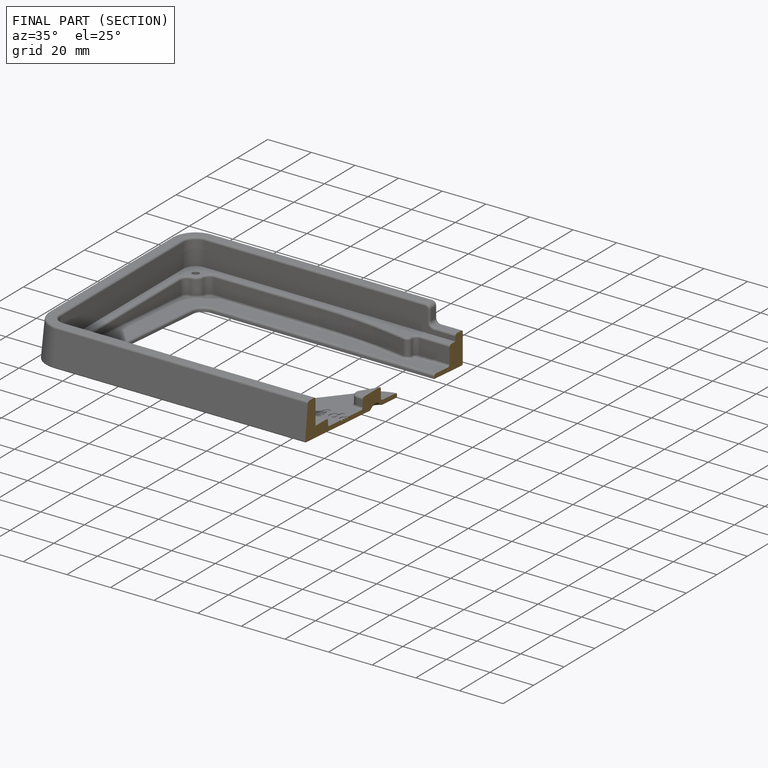
[diagram: finished part — half-section view (interior)]
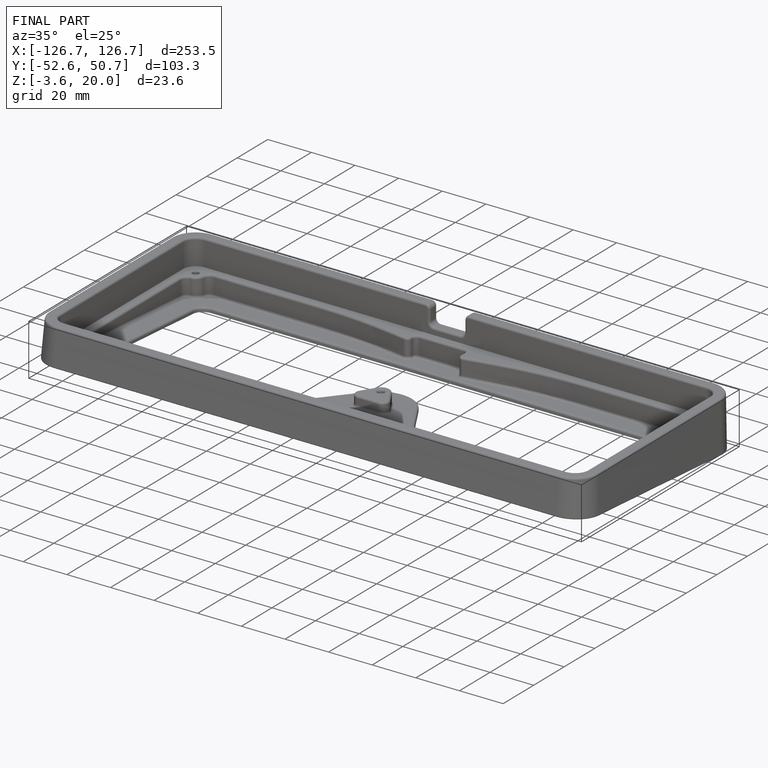
[diagram: finished part — iso view with bounding-box wireframe]
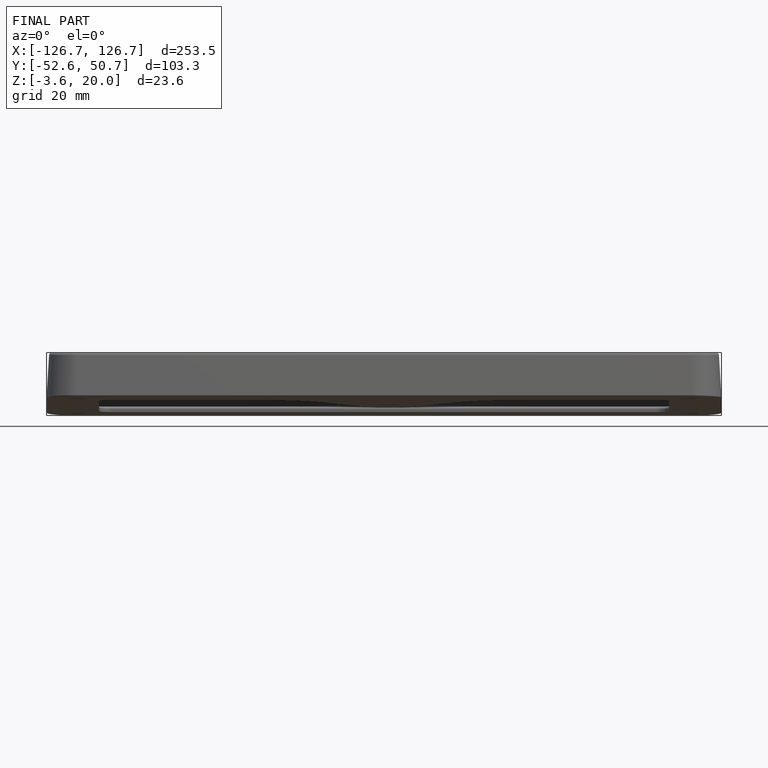
[diagram: finished part — front view with bounding-box wireframe]
